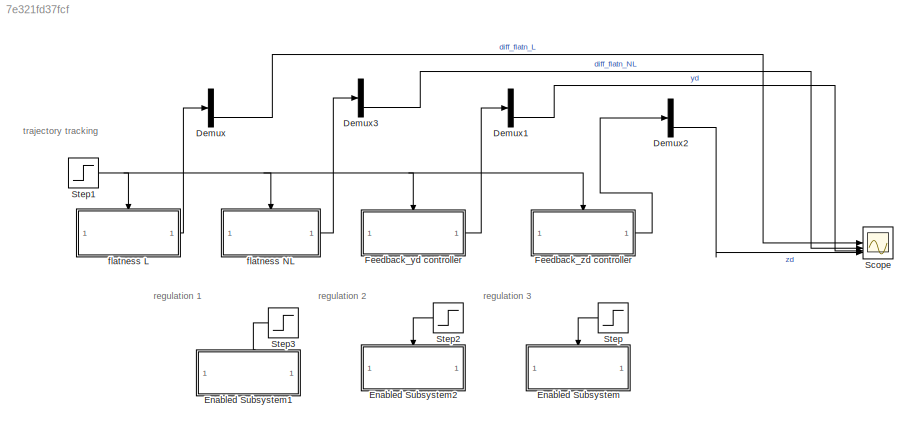
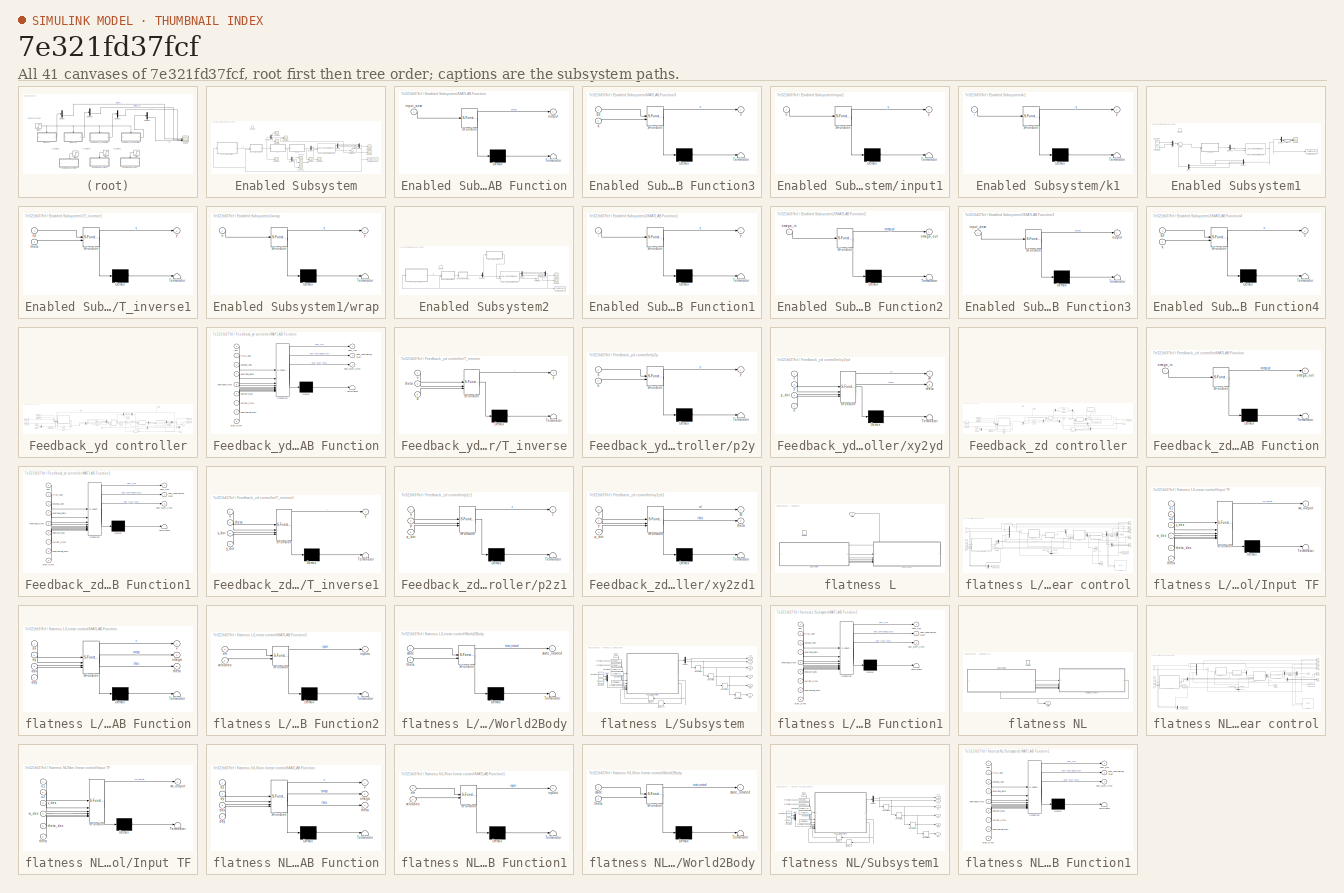
[diagram: thumbnail index - all 41 canvases of the model, root first then tree order]
MODEL slx_7e321fd37fcf
KIND model
CONFIG AbsTol = auto
CONFIG EnableMultiTasking = off
CONFIG FixedStep = auto
CONFIG MaxStep = auto
CONFIG MinStep = auto
CONFIG RelTol = 1e-3
CONFIG SampleTimeConstraint = Unconstrained
CONFIG SolverName = FixedStepAuto
CONFIG StartTime = 0.0
CONFIG StopTime = 15
WORKSPACE source: mxarray member
WORKSPACE kp: Simulink.Parameter (value not decoded)
BLOCK [Demux] Demux
  Outputs = 3
BLOCK [Demux] Demux1
  Outputs = 3
BLOCK [Demux] Demux2
  Outputs = 3
BLOCK [Demux] Demux3
  Outputs = 3
BLOCK [SubSystem] Enabled Subsystem
  TreatAsAtomicUnit = on
BLOCK [Demux] Enabled Subsystem/Demux
  Outputs = 3
BLOCK [Demux] Enabled Subsystem/Demux2
  Outputs = 3
BLOCK [Demux] Enabled Subsystem/Demux3
  Outputs = 3
BLOCK [Demux] Enabled Subsystem/Demux5
  Outputs = 2
BLOCK [EnablePort] Enabled Subsystem/Enable
BLOCK [SubSystem] Enabled Subsystem/MATLAB Function
  ErrorFcn = Stateflow.Translate.translate
  PermitHierarchicalResolution = ExplicitOnly
  SFBlockType = MATLAB Function
  TreatAsAtomicUnit = on
BLOCK [Demux] Enabled Subsystem/MATLAB Function/ Demux 
  Outputs = 1
BLOCK [S-Function] Enabled Subsystem/MATLAB Function/ SFunction 
  EnableBusSupport = on
  FunctionName = sf_sfun
  PortCounts = [1 2]
  SFcnIsStateOwnerBlock = off
  SFunctionDeploymentMode = off
  Tag = Stateflow S-Function 7
BLOCK [Terminator] Enabled Subsystem/MATLAB Function/ Terminator 
BLOCK [Inport] Enabled Subsystem/MATLAB Function/input_pose
BLOCK [Outport] Enabled Subsystem/MATLAB Function/output
BLOCK [SubSystem] Enabled Subsystem/MATLAB Function3
  ErrorFcn = Stateflow.Translate.translate
  PermitHierarchicalResolution = ExplicitOnly
  SFBlockType = MATLAB Function
  TreatAsAtomicUnit = on
BLOCK [Demux] Enabled Subsystem/MATLAB Function3/ Demux 
  Outputs = 1
BLOCK [S-Function] Enabled Subsystem/MATLAB Function3/ SFunction 
  EnableBusSupport = on
  FunctionName = sf_sfun
  PortCounts = [2 2]
  SFcnIsStateOwnerBlock = off
  SFunctionDeploymentMode = off
  Tag = Stateflow S-Function 9
BLOCK [Terminator] Enabled Subsystem/MATLAB Function3/ Terminator 
BLOCK [Outport] Enabled Subsystem/MATLAB Function3/o
BLOCK [Inport] Enabled Subsystem/MATLAB Function3/q
  Port = 2
BLOCK [Inport] Enabled Subsystem/MATLAB Function3/qd
BLOCK [Mux] Enabled Subsystem/Mux2
  DisplayOption = bar
  Inputs = 3
BLOCK [Scope] Enabled Subsystem/Scope10
  Floating = off
  NumInputPorts = 1
  ScopeSpecificationString = Simulink.scopes.TimeScopeBlockCfg('CurrentConfiguration', extmgr.ConfigurationSet(extmgr.Configuration('Core','General UI',true),extmgr.Configuration('Core','Source UI',true),extmgr.Configuration('Sources','WiredSimulink',true,'DataLoggingVariableName','ScopeData1'),extmgr.Configuration('Visuals','Time Domain',true,'SerializedDisplays',{struct('MinYLimReal','-1.16743','MaxYLimReal','0.58863','YLab...<+1438ch>
BLOCK [Scope] Enabled Subsystem/Scope11
  Floating = off
  NumInputPorts = 1
  ScopeSpecificationString = Simulink.scopes.TimeScopeBlockCfg('CurrentConfiguration', extmgr.ConfigurationSet(extmgr.Configuration('Core','General UI',true),extmgr.Configuration('Core','Source UI',true),extmgr.Configuration('Sources','WiredSimulink',true,'DataLoggingVariableName','ScopeData2'),extmgr.Configuration('Visuals','Time Domain',true,'SerializedDisplays',{struct('MinYLimReal','-16.30977','MaxYLimReal','146.78792','Y...<+1448ch>
BLOCK [Scope] Enabled Subsystem/Scope12
  Floating = off
  NumInputPorts = 1
  ScopeSpecificationString = Simulink.scopes.TimeScopeBlockCfg('CurrentConfiguration', extmgr.ConfigurationSet(extmgr.Configuration('Core','General UI',true),extmgr.Configuration('Core','Source UI',true),extmgr.Configuration('Sources','WiredSimulink',true,'DataLoggingVariableName','ScopeData3'),extmgr.Configuration('Visuals','Time Domain',true,'SerializedDisplays',{struct('MinYLimReal','-245.76562','MaxYLimReal','2211.89062',...<+1465ch>
BLOCK [Scope] Enabled Subsystem/Scope2
  Floating = off
  NumInputPorts = 1
  ScopeSpecificationString = Simulink.scopes.TimeScopeBlockCfg('CurrentConfiguration', extmgr.ConfigurationSet(extmgr.Configuration('Core','General UI',true),extmgr.Configuration('Core','Source UI',true),extmgr.Configuration('Sources','WiredSimulink',true,'DataLoggingVariableName','ScopeData4'),extmgr.Configuration('Visuals','Time Domain',true,'SerializedDisplays',{struct('MinYLimReal','-0.19774','MaxYLimReal','1.77968','YLab...<+1417ch>
BLOCK [Scope] Enabled Subsystem/Scope3
  Floating = off
  NumInputPorts = 1
  ScopeSpecificationString = Simulink.scopes.TimeScopeBlockCfg('CurrentConfiguration', extmgr.ConfigurationSet(extmgr.Configuration('Core','General UI',true),extmgr.Configuration('Core','Source UI',true),extmgr.Configuration('Sources','WiredSimulink',true,'DataLoggingVariableName','ScopeData5'),extmgr.Configuration('Visuals','Time Domain',true,'SerializedDisplays',{struct('MinYLimReal','-26.46174','MaxYLimReal','224.1183','YL...<+1496ch>
BLOCK [Scope] Enabled Subsystem/Scope4
  Floating = off
  NumInputPorts = 1
  ScopeSpecificationString = Simulink.scopes.TimeScopeBlockCfg('CurrentConfiguration', extmgr.ConfigurationSet(extmgr.Configuration('Core','General UI',true),extmgr.Configuration('Core','Source UI',true),extmgr.Configuration('Sources','WiredSimulink',true,'DataLoggingVariableName','ScopeData6'),extmgr.Configuration('Visuals','Time Domain',true,'SerializedDisplays',{struct('MinYLimReal','1.40715','MaxYLimReal','1.67308','YLabe...<+1460ch>
BLOCK [Scope] Enabled Subsystem/Scope5
  Floating = off
  NumInputPorts = 2
  ScopeSpecificationString = Simulink.scopes.TimeScopeBlockCfg('CurrentConfiguration', extmgr.ConfigurationSet(extmgr.Configuration('Core','General UI',true),extmgr.Configuration('Core','Source UI',true),extmgr.Configuration('Sources','WiredSimulink',true,'DataLoggingVariableName','ScopeData7'),extmgr.Configuration('Visuals','Time Domain',true,'SerializedDisplays',{struct('MinYLimReal','-3.5802','MaxYLimReal','23.77303','YLab...<+1447ch>
BLOCK [Scope] Enabled Subsystem/Scope6
  Floating = off
  NumInputPorts = 1
  ScopeSpecificationString = Simulink.scopes.TimeScopeBlockCfg('CurrentConfiguration', extmgr.ConfigurationSet(extmgr.Configuration('Core','General UI',true),extmgr.Configuration('Core','Source UI',true),extmgr.Configuration('Sources','WiredSimulink',true,'DataLoggingVariableName','ScopeData8'),extmgr.Configuration('Visuals','Time Domain',true,'SerializedDisplays',{struct('MinYLimReal','-14.71148','MaxYLimReal','142.44876','Y...<+1429ch>
BLOCK [Scope] Enabled Subsystem/Scope7
  Floating = off
  NumInputPorts = 1
  ScopeSpecificationString = Simulink.scopes.TimeScopeBlockCfg('CurrentConfiguration', extmgr.ConfigurationSet(extmgr.Configuration('Core','General UI',true),extmgr.Configuration('Core','Source UI',true),extmgr.Configuration('Sources','WiredSimulink',true,'DataLoggingVariableName','ScopeData9'),extmgr.Configuration('Visuals','Time Domain',true,'SerializedDisplays',{struct('MinYLimReal','-1.15104','MaxYLimReal','6.1719','YLabe...<+1434ch>
BLOCK [Scope] Enabled Subsystem/Scope8
  Floating = off
  NumInputPorts = 1
  ScopeSpecificationString = Simulink.scopes.TimeScopeBlockCfg('CurrentConfiguration', extmgr.ConfigurationSet(extmgr.Configuration('Core','General UI',true),extmgr.Configuration('Core','Source UI',true),extmgr.Configuration('Sources','WiredSimulink',true,'DataLoggingVariableName','ScopeData10'),extmgr.Configuration('Visuals','Time Domain',true,'SerializedDisplays',{struct('MinYLimReal','-1.24996','MaxYLimReal','11.24963','YL...<+1424ch>
BLOCK [Scope] Enabled Subsystem/Scope9
  Floating = off
  NumInputPorts = 1
  ScopeSpecificationString = Simulink.scopes.TimeScopeBlockCfg('CurrentConfiguration', extmgr.ConfigurationSet(extmgr.Configuration('Core','General UI',true),extmgr.Configuration('Core','Source UI',true),extmgr.Configuration('Sources','WiredSimulink',true,'DataLoggingVariableName','ScopeData11'),extmgr.Configuration('Visuals','Time Domain',true,'SerializedDisplays',{struct('MinYLimReal','-13.04195','MaxYLimReal','222.62721','...<+1430ch>
BLOCK [Terminator] Enabled Subsystem/Terminator
BLOCK [ToWorkspace] Enabled Subsystem/To Workspace1
  FixptAsFi = on
  MaxDataPoints = inf
  SampleTime = 0.004
  SaveFormat = Structure With Time
  VariableName = uni_state1
BLOCK [Reference] Enabled Subsystem/Unicycle Kinematic Model1  REF=robotmobilelib/Unicycle Kinematic Model
  SourceBlock = robotmobilelib/Unicycle Kinematic Model
  SourceType = Unicycle Kinematic Model
BLOCK [Reference] Enabled Subsystem/Unwrap  REF=dspsigops/Unwrap
  SourceBlock = dspsigops/Unwrap
  SourceType = Unwrap
  UserDataPersistent = on
BLOCK [SubSystem] Enabled Subsystem/input1
  ErrorFcn = Stateflow.Translate.translate
  PermitHierarchicalResolution = ExplicitOnly
  SFBlockType = MATLAB Function
  TreatAsAtomicUnit = on
BLOCK [Demux] Enabled Subsystem/input1/ Demux 
  Outputs = 1
BLOCK [S-Function] Enabled Subsystem/input1/ SFunction 
  EnableBusSupport = on
  FunctionName = sf_sfun
  PortCounts = [1 2]
  SFcnIsStateOwnerBlock = off
  SFunctionDeploymentMode = off
  Tag = Stateflow S-Function 10
BLOCK [Terminator] Enabled Subsystem/input1/ Terminator 
BLOCK [Inport] Enabled Subsystem/input1/u
BLOCK [Outport] Enabled Subsystem/input1/y
BLOCK [SubSystem] Enabled Subsystem/k1
  ErrorFcn = Stateflow.Translate.translate
  PermitHierarchicalResolution = ExplicitOnly
  SFBlockType = MATLAB Function
  TreatAsAtomicUnit = on
BLOCK [Demux] Enabled Subsystem/k1/ Demux 
  Outputs = 1
BLOCK [S-Function] Enabled Subsystem/k1/ SFunction 
  EnableBusSupport = on
  FunctionName = sf_sfun
  PortCounts = [1 2]
  SFcnIsStateOwnerBlock = off
  SFunctionDeploymentMode = off
  Tag = Stateflow S-Function 11
BLOCK [Terminator] Enabled Subsystem/k1/ Terminator 
BLOCK [Inport] Enabled Subsystem/k1/i
BLOCK [Outport] Enabled Subsystem/k1/y
BLOCK [SubSystem] Enabled Subsystem1
  Commented = on
  TreatAsAtomicUnit = on
BLOCK [Constant] Enabled Subsystem1/Constant
  Value = 320
BLOCK [Constant] Enabled Subsystem1/Constant1
  Value = 100
BLOCK [Demux] Enabled Subsystem1/Demux
  NameLocation = top
  Outputs = 3
BLOCK [Demux] Enabled Subsystem1/Demux2
  Outputs = 2
BLOCK [Demux] Enabled Subsystem1/Demux4
  Outputs = 3
BLOCK [EnablePort] Enabled Subsystem1/Enable
BLOCK [Mux] Enabled Subsystem1/Mux
  DisplayOption = bar
  Inputs = 2
BLOCK [Mux] Enabled Subsystem1/Mux1
  DisplayOption = bar
  Inputs = 2
  NameLocation = top
BLOCK [Scope] Enabled Subsystem1/Scope2
  Floating = off
  NumInputPorts = 3
  ScopeSpecificationString = Simulink.scopes.TimeScopeBlockCfg('CurrentConfiguration', extmgr.ConfigurationSet(extmgr.Configuration('Core','General UI',true),extmgr.Configuration('Core','Source UI',true),extmgr.Configuration('Sources','WiredSimulink',true,'DataLoggingVariableName','ScopeData1'),extmgr.Configuration('Visuals','Time Domain',true,'SerializedDisplays',{struct('MinYLimReal','-40.00000','MaxYLimReal','360.00000','Y...<+1475ch>
BLOCK [Sum] Enabled Subsystem1/Sum2
  Inputs = ||+-|
BLOCK [SubSystem] Enabled Subsystem1/T_inverse1
  ErrorFcn = Stateflow.Translate.translate
  PermitHierarchicalResolution = ExplicitOnly
  SFBlockType = MATLAB Function
  TreatAsAtomicUnit = on
BLOCK [Demux] Enabled Subsystem1/T_inverse1/ Demux 
  Outputs = 1
BLOCK [S-Function] Enabled Subsystem1/T_inverse1/ SFunction 
  EnableBusSupport = off
  FunctionName = sf_sfun
  PortCounts = [2 2]
  SFcnIsStateOwnerBlock = off
  SFunctionDeploymentMode = off
  Tag = Stateflow S-Function 17
BLOCK [Terminator] Enabled Subsystem1/T_inverse1/ Terminator 
BLOCK [Inport] Enabled Subsystem1/T_inverse1/ep
BLOCK [Inport] Enabled Subsystem1/T_inverse1/theta
  Port = 2
BLOCK [Outport] Enabled Subsystem1/T_inverse1/y
BLOCK [ToWorkspace] Enabled Subsystem1/To Workspace1
  FixptAsFi = on
  MaxDataPoints = inf
  SampleTime = 0.001
  SaveFormat = Structure With Time
  VariableName = uni_state1
BLOCK [Reference] Enabled Subsystem1/Unicycle Kinematic Model1  REF=robotmobilelib/Unicycle Kinematic Model
  SourceBlock = robotmobilelib/Unicycle Kinematic Model
  SourceType = Unicycle Kinematic Model
BLOCK [SubSystem] Enabled Subsystem1/wrap
  ErrorFcn = Stateflow.Translate.translate
  PermitHierarchicalResolution = ExplicitOnly
  SFBlockType = MATLAB Function
  TreatAsAtomicUnit = on
BLOCK [Demux] Enabled Subsystem1/wrap/ Demux 
  Outputs = 1
BLOCK [S-Function] Enabled Subsystem1/wrap/ SFunction 
  EnableBusSupport = off
  FunctionName = sf_sfun
  PortCounts = [1 2]
  SFcnIsStateOwnerBlock = off
  SFunctionDeploymentMode = off
  Tag = Stateflow S-Function 16
BLOCK [Terminator] Enabled Subsystem1/wrap/ Terminator 
BLOCK [Inport] Enabled Subsystem1/wrap/u
BLOCK [Outport] Enabled Subsystem1/wrap/y
BLOCK [SubSystem] Enabled Subsystem2
  Commented = on
  TreatAsAtomicUnit = on
BLOCK [Demux] Enabled Subsystem2/Demux
  Outputs = 3
BLOCK [Demux] Enabled Subsystem2/Demux5
  Outputs = 2
BLOCK [EnablePort] Enabled Subsystem2/Enable
BLOCK [SubSystem] Enabled Subsystem2/MATLAB Function1
  ErrorFcn = Stateflow.Translate.translate
  PermitHierarchicalResolution = ExplicitOnly
  SFBlockType = MATLAB Function
  TreatAsAtomicUnit = on
BLOCK [Demux] Enabled Subsystem2/MATLAB Function1/ Demux 
  Outputs = 1
BLOCK [S-Function] Enabled Subsystem2/MATLAB Function1/ SFunction 
  EnableBusSupport = off
  FunctionName = sf_sfun
  PortCounts = [1 2]
  SFcnIsStateOwnerBlock = off
  SFunctionDeploymentMode = off
  Tag = Stateflow S-Function 12
BLOCK [Terminator] Enabled Subsystem2/MATLAB Function1/ Terminator 
BLOCK [Inport] Enabled Subsystem2/MATLAB Function1/i
BLOCK [Outport] Enabled Subsystem2/MATLAB Function1/y
BLOCK [SubSystem] Enabled Subsystem2/MATLAB Function2
  ErrorFcn = Stateflow.Translate.translate
  PermitHierarchicalResolution = ExplicitOnly
  SFBlockType = MATLAB Function
  TreatAsAtomicUnit = on
BLOCK [Demux] Enabled Subsystem2/MATLAB Function2/ Demux 
  Outputs = 1
BLOCK [S-Function] Enabled Subsystem2/MATLAB Function2/ SFunction 
  EnableBusSupport = off
  FunctionName = sf_sfun
  PortCounts = [1 2]
  SFcnIsStateOwnerBlock = off
  SFunctionDeploymentMode = off
  Tag = Stateflow S-Function 13
BLOCK [Terminator] Enabled Subsystem2/MATLAB Function2/ Terminator 
BLOCK [Inport] Enabled Subsystem2/MATLAB Function2/omega_in
BLOCK [Outport] Enabled Subsystem2/MATLAB Function2/omega_out
BLOCK [SubSystem] Enabled Subsystem2/MATLAB Function3
  ErrorFcn = Stateflow.Translate.translate
  PermitHierarchicalResolution = ExplicitOnly
  SFBlockType = MATLAB Function
  TreatAsAtomicUnit = on
BLOCK [Demux] Enabled Subsystem2/MATLAB Function3/ Demux 
  Outputs = 1
BLOCK [S-Function] Enabled Subsystem2/MATLAB Function3/ SFunction 
  EnableBusSupport = off
  FunctionName = sf_sfun
  PortCounts = [1 2]
  SFcnIsStateOwnerBlock = off
  SFunctionDeploymentMode = off
  Tag = Stateflow S-Function 14
BLOCK [Terminator] Enabled Subsystem2/MATLAB Function3/ Terminator 
BLOCK [Inport] Enabled Subsystem2/MATLAB Function3/input_pose
BLOCK [Outport] Enabled Subsystem2/MATLAB Function3/output
BLOCK [SubSystem] Enabled Subsystem2/MATLAB Function4
  ErrorFcn = Stateflow.Translate.translate
  PermitHierarchicalResolution = ExplicitOnly
  SFBlockType = MATLAB Function
  TreatAsAtomicUnit = on
BLOCK [Demux] Enabled Subsystem2/MATLAB Function4/ Demux 
  Outputs = 1
BLOCK [S-Function] Enabled Subsystem2/MATLAB Function4/ SFunction 
  EnableBusSupport = off
  FunctionName = sf_sfun
  PortCounts = [2 2]
  SFcnIsStateOwnerBlock = off
  SFunctionDeploymentMode = off
  Tag = Stateflow S-Function 15
BLOCK [Terminator] Enabled Subsystem2/MATLAB Function4/ Terminator 
BLOCK [Outport] Enabled Subsystem2/MATLAB Function4/o
BLOCK [Inport] Enabled Subsystem2/MATLAB Function4/q
  Port = 2
BLOCK [Inport] Enabled Subsystem2/MATLAB Function4/qd
BLOCK [Mux] Enabled Subsystem2/Mux2
  DisplayOption = bar
  Inputs = 3
BLOCK [Scope] Enabled Subsystem2/Scope1
  Floating = off
  NumInputPorts = 1
  ScopeSpecificationString = Simulink.scopes.TimeScopeBlockCfg('CurrentConfiguration', extmgr.ConfigurationSet(extmgr.Configuration('Core','General UI',true),extmgr.Configuration('Core','Source UI',true),extmgr.Configuration('Sources','WiredSimulink',true,'DataLoggingVariableName','ScopeData12'),extmgr.Configuration('Visuals','Time Domain',true,'SerializedDisplays',{struct('MinYLimReal','-0.51276','MaxYLimReal','1.89269','YLa...<+1418ch>
BLOCK [Scope] Enabled Subsystem2/Scope4
  Floating = off
  NumInputPorts = 1
  ScopeSpecificationString = Simulink.scopes.TimeScopeBlockCfg('CurrentConfiguration', extmgr.ConfigurationSet(extmgr.Configuration('Core','General UI',true),extmgr.Configuration('Core','Source UI',true),extmgr.Configuration('Sources','WiredSimulink',true,'DataLoggingVariableName','ScopeData13'),extmgr.Configuration('Visuals','Time Domain',true,'SerializedDisplays',{struct('MinYLimReal','1.40715','MaxYLimReal','1.67308','YLab...<+1461ch>
BLOCK [Terminator] Enabled Subsystem2/Terminator
BLOCK [ToWorkspace] Enabled Subsystem2/To Workspace2
  FixptAsFi = on
  MaxDataPoints = inf
  SampleTime = 0.004
  SaveFormat = Structure With Time
  VariableName = uni_state1
BLOCK [Reference] Enabled Subsystem2/Unicycle Kinematic Model2  REF=robotmobilelib/Unicycle Kinematic Model
  SourceBlock = robotmobilelib/Unicycle Kinematic Model
  SourceType = Unicycle Kinematic Model
BLOCK [Reference] Enabled Subsystem2/Unwrap  REF=dspsigops/Unwrap
  SourceBlock = dspsigops/Unwrap
  SourceType = Unwrap
  UserDataPersistent = on
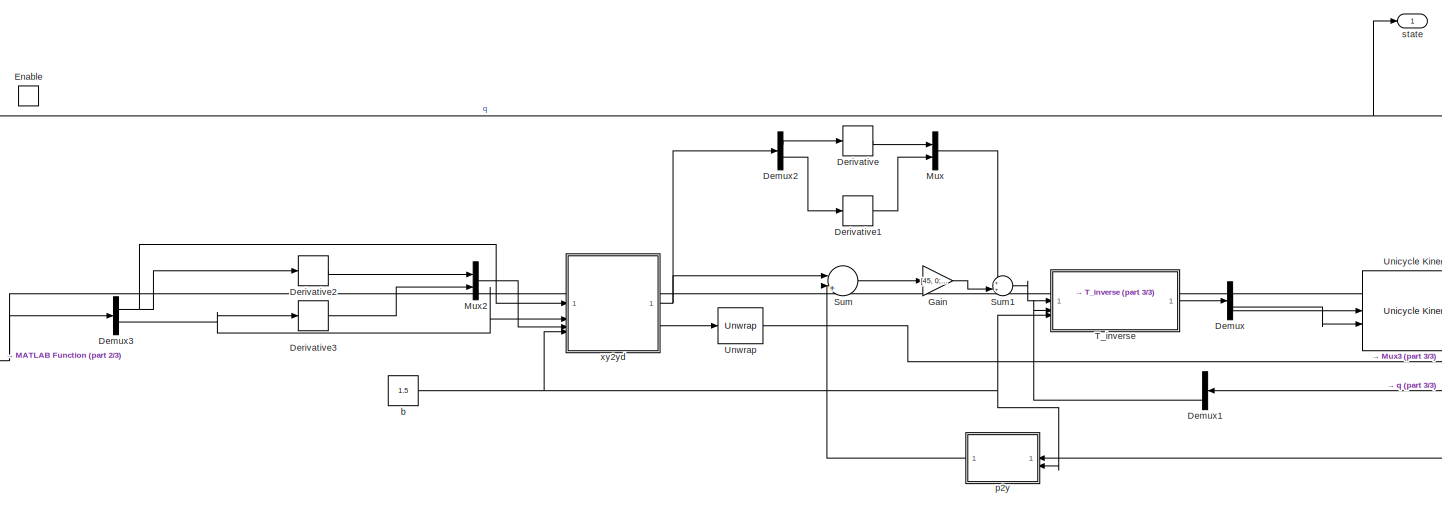
[diagram: Feedback_yd controller - part 1/3, center side, full height]
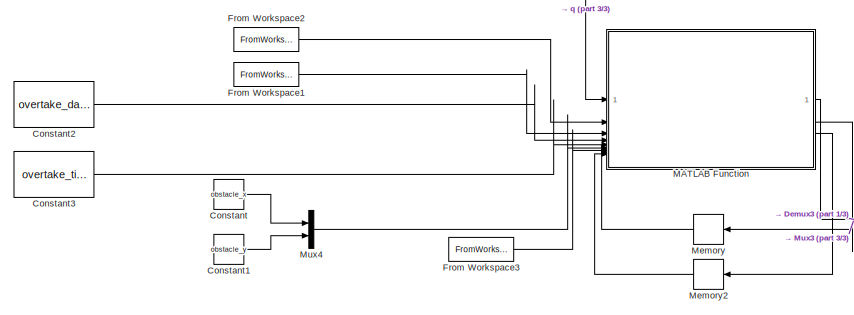
[diagram: Feedback_yd controller - part 2/3, middle left region]
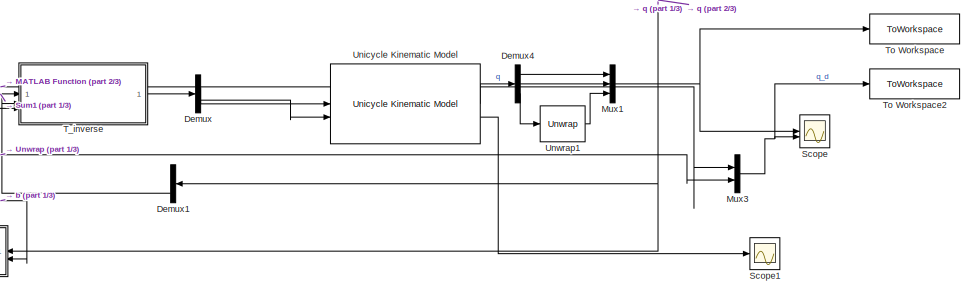
[diagram: Feedback_yd controller - part 3/3, bottom right region]
BLOCK [SubSystem] Feedback_yd controller
  TreatAsAtomicUnit = on
BLOCK [Constant] Feedback_yd controller/Constant
  Value = obstacle_x
BLOCK [Constant] Feedback_yd controller/Constant1
  Value = obstacle_y
BLOCK [Constant] Feedback_yd controller/Constant2
  Value = overtake_data
BLOCK [Constant] Feedback_yd controller/Constant3
  Value = overtake_time
BLOCK [Demux] Feedback_yd controller/Demux
  Outputs = 2
BLOCK [Demux] Feedback_yd controller/Demux1
  NameLocation = top
  Outputs = 3
BLOCK [Demux] Feedback_yd controller/Demux2
  Outputs = 2
BLOCK [Demux] Feedback_yd controller/Demux3
  Outputs = 2
BLOCK [Demux] Feedback_yd controller/Demux4
  Outputs = 3
BLOCK [Derivative] Feedback_yd controller/Derivative
BLOCK [Derivative] Feedback_yd controller/Derivative1
BLOCK [Derivative] Feedback_yd controller/Derivative2
BLOCK [Derivative] Feedback_yd controller/Derivative3
BLOCK [EnablePort] Feedback_yd controller/Enable
BLOCK [FromWorkspace] Feedback_yd controller/From Workspace1
  VariableName = second_lane
BLOCK [FromWorkspace] Feedback_yd controller/From Workspace2
  VariableName = ref_data
BLOCK [FromWorkspace] Feedback_yd controller/From Workspace3
  VariableName = current_time
BLOCK [Gain] Feedback_yd controller/Gain
  Gain = [45, 0; 0, 30]
  Multiplication = Matrix(K*u)
BLOCK [SubSystem] Feedback_yd controller/MATLAB Function
  ErrorFcn = Stateflow.Translate.translate
  LibrarySourceBlock = simulink/User-Defined\nFunctions/MATLAB Function
  PermitHierarchicalResolution = ExplicitOnly
  SFBlockType = MATLAB Function
  TreatAsAtomicUnit = on
BLOCK [Demux] Feedback_yd controller/MATLAB Function/ Demux 
  Outputs = 1
BLOCK [S-Function] Feedback_yd controller/MATLAB Function/ SFunction 
  EnableBusSupport = on
  FunctionName = sf_sfun
  PortCounts = [9 4]
  SFcnIsStateOwnerBlock = off
  SFunctionDeploymentMode = off
  Tag = Stateflow S-Function 18
BLOCK [Terminator] Feedback_yd controller/MATLAB Function/ Terminator 
BLOCK [Inport] Feedback_yd controller/MATLAB Function/current_time
  Port = 7
BLOCK [Inport] Feedback_yd controller/MATLAB Function/first_lane
  Port = 2
BLOCK [Outport] Feedback_yd controller/MATLAB Function/new_overtaking_start
  Port = 2
BLOCK [Outport] Feedback_yd controller/MATLAB Function/new_start_time
  Port = 3
BLOCK [Outport] Feedback_yd controller/MATLAB Function/new_traj
BLOCK [Inport] Feedback_yd controller/MATLAB Function/obstacle_pos
  Port = 6
BLOCK [Inport] Feedback_yd controller/MATLAB Function/overtake_data
  Port = 4
BLOCK [Inport] Feedback_yd controller/MATLAB Function/overtake_time
  Port = 5
BLOCK [Inport] Feedback_yd controller/MATLAB Function/overtaking_start
  Port = 8
BLOCK [Inport] Feedback_yd controller/MATLAB Function/pos
BLOCK [Inport] Feedback_yd controller/MATLAB Function/second_lane
  Port = 3
BLOCK [Inport] Feedback_yd controller/MATLAB Function/start_time
  Port = 9
BLOCK [Memory] Feedback_yd controller/Memory
  NameLocation = top
BLOCK [Memory] Feedback_yd controller/Memory2
  NameLocation = top
BLOCK [Mux] Feedback_yd controller/Mux
  DisplayOption = bar
  Inputs = 2
BLOCK [Mux] Feedback_yd controller/Mux1
  DisplayOption = bar
  Inputs = 3
BLOCK [Mux] Feedback_yd controller/Mux2
  DisplayOption = bar
  Inputs = 2
BLOCK [Mux] Feedback_yd controller/Mux3
  DisplayOption = bar
  Inputs = 2
BLOCK [Mux] Feedback_yd controller/Mux4
  DisplayOption = bar
  Inputs = 2
BLOCK [Scope] Feedback_yd controller/Scope
  Floating = off
  NumInputPorts = 2
  ScopeSpecificationString = Simulink.scopes.TimeScopeBlockCfg('CurrentConfiguration', extmgr.ConfigurationSet(extmgr.Configuration('Core','General UI',true),extmgr.Configuration('Core','Source UI',true),extmgr.Configuration('Sources','WiredSimulink',true),extmgr.Configuration('Visuals','Time Domain',true,'SerializedDisplays',{struct('MinYLimReal','-69.726','MaxYLimReal','627.51644','YLabelReal','','MinYLimMag','0.00000','Max...<+1447ch>
BLOCK [Scope] Feedback_yd controller/Scope1
  Floating = off
  NumInputPorts = 1
  ScopeSpecificationString = Simulink.scopes.TimeScopeBlockCfg('CurrentConfiguration', extmgr.ConfigurationSet(extmgr.Configuration('Core','General UI',true),extmgr.Configuration('Core','Source UI',true),extmgr.Configuration('Sources','WiredSimulink',true,'DataLoggingVariableName','ScopeData1'),extmgr.Configuration('Visuals','Time Domain',true,'SerializedDisplays',{struct('MinYLimReal','-202.83627','MaxYLimReal','191.02703','...<+1520ch>
BLOCK [Sum] Feedback_yd controller/Sum
  Inputs = ||+-|
BLOCK [Sum] Feedback_yd controller/Sum1
  Inputs = ++|
BLOCK [SubSystem] Feedback_yd controller/T_inverse
  ErrorFcn = Stateflow.Translate.translate
  PermitHierarchicalResolution = ExplicitOnly
  SFBlockType = MATLAB Function
  TreatAsAtomicUnit = on
BLOCK [Demux] Feedback_yd controller/T_inverse/ Demux 
  Outputs = 1
BLOCK [S-Function] Feedback_yd controller/T_inverse/ SFunction 
  EnableBusSupport = on
  FunctionName = sf_sfun
  PortCounts = [3 2]
  SFcnIsStateOwnerBlock = off
  SFunctionDeploymentMode = off
  Tag = Stateflow S-Function 19
BLOCK [Terminator] Feedback_yd controller/T_inverse/ Terminator 
BLOCK [Inport] Feedback_yd controller/T_inverse/b
  Port = 3
BLOCK [Inport] Feedback_yd controller/T_inverse/theta
  Port = 2
BLOCK [Inport] Feedback_yd controller/T_inverse/u
BLOCK [Outport] Feedback_yd controller/T_inverse/y
BLOCK [ToWorkspace] Feedback_yd controller/To Workspace
  FixptAsFi = on
  MaxDataPoints = inf
  SampleTime = 0.01
  SaveFormat = Structure With Time
  VariableName = uni_state_yd
BLOCK [ToWorkspace] Feedback_yd controller/To Workspace2
  FixptAsFi = on
  MaxDataPoints = inf
  SampleTime = 0.01
  SaveFormat = Structure With Time
  VariableName = reference_yd
BLOCK [Reference] Feedback_yd controller/Unicycle Kinematic Model  REF=robotmobilelib/Unicycle Kinematic Model
  SourceBlock = robotmobilelib/Unicycle Kinematic Model
  SourceType = Unicycle Kinematic Model
BLOCK [Reference] Feedback_yd controller/Unwrap  REF=dspsigops/Unwrap
  SourceBlock = dspsigops/Unwrap
  SourceType = Unwrap
  UserDataPersistent = on
BLOCK [Reference] Feedback_yd controller/Unwrap1  REF=dspsigops/Unwrap
  SourceBlock = dspsigops/Unwrap
  SourceType = Unwrap
  UserDataPersistent = on
BLOCK [Constant] Feedback_yd controller/b
  Value = 1.5
BLOCK [SubSystem] Feedback_yd controller/p2y
  ErrorFcn = Stateflow.Translate.translate
  NameLocation = top
  PermitHierarchicalResolution = ExplicitOnly
  SFBlockType = MATLAB Function
  TreatAsAtomicUnit = on
BLOCK [Demux] Feedback_yd controller/p2y/ Demux 
  Outputs = 1
BLOCK [S-Function] Feedback_yd controller/p2y/ SFunction 
  EnableBusSupport = on
  FunctionName = sf_sfun
  PortCounts = [2 2]
  SFcnIsStateOwnerBlock = off
  SFunctionDeploymentMode = off
  Tag = Stateflow S-Function 22
BLOCK [Terminator] Feedback_yd controller/p2y/ Terminator 
BLOCK [Inport] Feedback_yd controller/p2y/b
  Port = 2
BLOCK [Inport] Feedback_yd controller/p2y/q
BLOCK [Outport] Feedback_yd controller/p2y/y
BLOCK [Outport] Feedback_yd controller/state
BLOCK [SubSystem] Feedback_yd controller/xy2yd
  ErrorFcn = Stateflow.Translate.translate
  PermitHierarchicalResolution = ExplicitOnly
  SFBlockType = MATLAB Function
  TreatAsAtomicUnit = on
BLOCK [Demux] Feedback_yd controller/xy2yd/ Demux 
  Outputs = 1
BLOCK [S-Function] Feedback_yd controller/xy2yd/ SFunction 
  EnableBusSupport = on
  FunctionName = sf_sfun
  PortCounts = [4 3]
  SFcnIsStateOwnerBlock = off
  SFunctionDeploymentMode = off
  Tag = Stateflow S-Function 23
BLOCK [Terminator] Feedback_yd controller/xy2yd/ Terminator 
BLOCK [Inport] Feedback_yd controller/xy2yd/b
  Port = 4
BLOCK [Inport] Feedback_yd controller/xy2yd/p_dot
  Port = 3
BLOCK [Outport] Feedback_yd controller/xy2yd/theta
  Port = 2
BLOCK [Inport] Feedback_yd controller/xy2yd/x
BLOCK [Inport] Feedback_yd controller/xy2yd/y
  Port = 2
BLOCK [Outport] Feedback_yd controller/xy2yd/yd
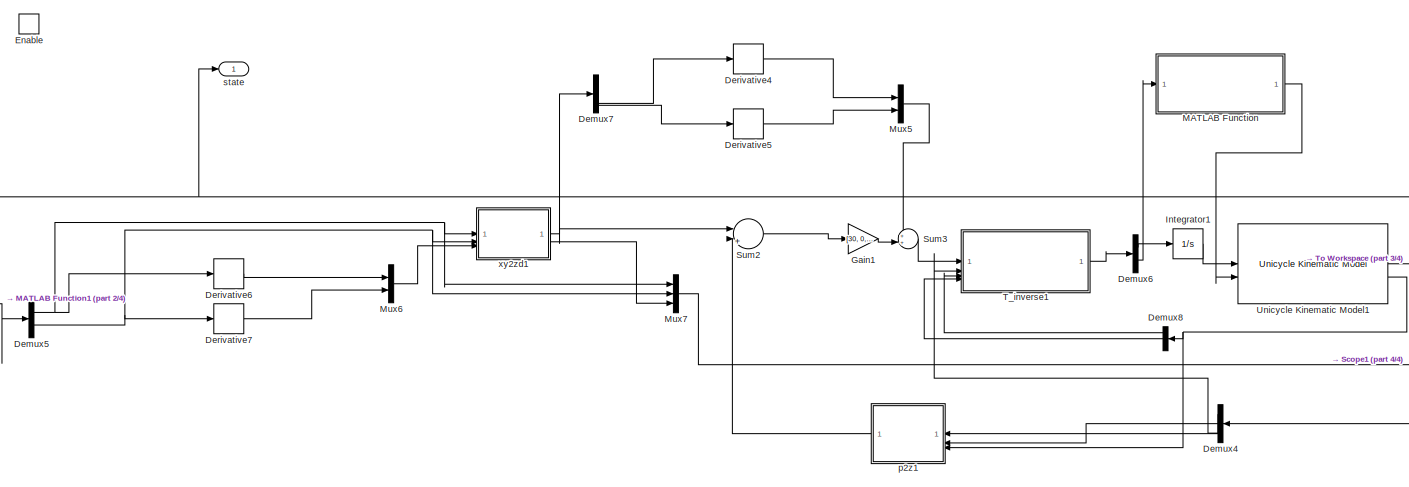
[diagram: Feedback_zd controller - part 1/4, center side, full height]
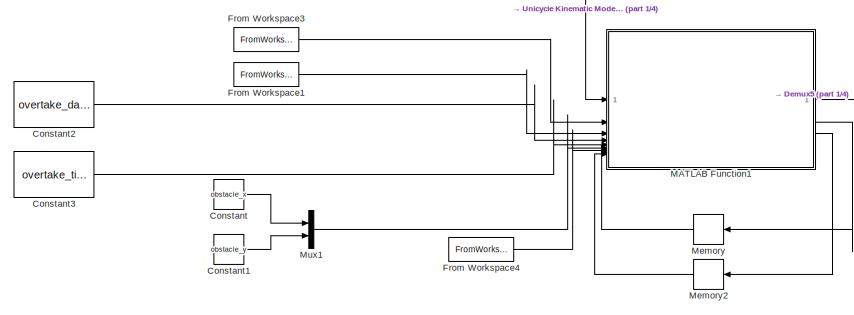
[diagram: Feedback_zd controller - part 2/4, bottom left region]
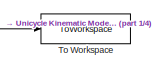
[diagram: Feedback_zd controller - part 3/4, middle right region]
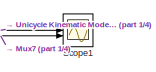
[diagram: Feedback_zd controller - part 4/4, middle right region]
BLOCK [SubSystem] Feedback_zd controller
  TreatAsAtomicUnit = on
BLOCK [Constant] Feedback_zd controller/Constant
  Value = obstacle_x
BLOCK [Constant] Feedback_zd controller/Constant1
  Value = obstacle_y
BLOCK [Constant] Feedback_zd controller/Constant2
  Value = overtake_data
BLOCK [Constant] Feedback_zd controller/Constant3
  Value = overtake_time
BLOCK [Demux] Feedback_zd controller/Demux4
  NameLocation = top
  Outputs = 3
BLOCK [Demux] Feedback_zd controller/Demux5
  Outputs = 2
BLOCK [Demux] Feedback_zd controller/Demux6
  Outputs = 2
BLOCK [Demux] Feedback_zd controller/Demux7
BLOCK [Demux] Feedback_zd controller/Demux8
  NameLocation = top
  Outputs = 3
BLOCK [Derivative] Feedback_zd controller/Derivative4
BLOCK [Derivative] Feedback_zd controller/Derivative5
BLOCK [Derivative] Feedback_zd controller/Derivative6
BLOCK [Derivative] Feedback_zd controller/Derivative7
BLOCK [EnablePort] Feedback_zd controller/Enable
BLOCK [FromWorkspace] Feedback_zd controller/From Workspace1
  VariableName = second_lane
BLOCK [FromWorkspace] Feedback_zd controller/From Workspace3
  VariableName = ref_data
BLOCK [FromWorkspace] Feedback_zd controller/From Workspace4
  VariableName = current_time
BLOCK [Gain] Feedback_zd controller/Gain1
  Gain = [30, 0, 50, 0; 0, 30, 0, 50]
  Multiplication = Matrix(K*u)
BLOCK [Integrator] Feedback_zd controller/Integrator1
BLOCK [SubSystem] Feedback_zd controller/MATLAB Function
  ErrorFcn = Stateflow.Translate.translate
  PermitHierarchicalResolution = ExplicitOnly
  SFBlockType = MATLAB Function
  TreatAsAtomicUnit = on
BLOCK [Demux] Feedback_zd controller/MATLAB Function/ Demux 
  Outputs = 1
BLOCK [S-Function] Feedback_zd controller/MATLAB Function/ SFunction 
  EnableBusSupport = on
  FunctionName = sf_sfun
  PortCounts = [1 2]
  SFcnIsStateOwnerBlock = off
  SFunctionDeploymentMode = off
  Tag = Stateflow S-Function 24
BLOCK [Terminator] Feedback_zd controller/MATLAB Function/ Terminator 
BLOCK [Inport] Feedback_zd controller/MATLAB Function/omega_in
BLOCK [Outport] Feedback_zd controller/MATLAB Function/omega_out
BLOCK [SubSystem] Feedback_zd controller/MATLAB Function1
  ErrorFcn = Stateflow.Translate.translate
  LibrarySourceBlock = simulink/User-Defined\nFunctions/MATLAB Function
  PermitHierarchicalResolution = ExplicitOnly
  SFBlockType = MATLAB Function
  TreatAsAtomicUnit = on
BLOCK [Demux] Feedback_zd controller/MATLAB Function1/ Demux 
  Outputs = 1
BLOCK [S-Function] Feedback_zd controller/MATLAB Function1/ SFunction 
  EnableBusSupport = on
  FunctionName = sf_sfun
  PortCounts = [9 4]
  SFcnIsStateOwnerBlock = off
  SFunctionDeploymentMode = off
  Tag = Stateflow S-Function 25
BLOCK [Terminator] Feedback_zd controller/MATLAB Function1/ Terminator 
BLOCK [Inport] Feedback_zd controller/MATLAB Function1/current_time
  Port = 7
BLOCK [Inport] Feedback_zd controller/MATLAB Function1/first_lane
  Port = 2
BLOCK [Outport] Feedback_zd controller/MATLAB Function1/new_overtaking_start
  Port = 2
BLOCK [Outport] Feedback_zd controller/MATLAB Function1/new_start_time
  Port = 3
BLOCK [Outport] Feedback_zd controller/MATLAB Function1/new_traj
BLOCK [Inport] Feedback_zd controller/MATLAB Function1/obstacle_pos
  Port = 6
BLOCK [Inport] Feedback_zd controller/MATLAB Function1/overtake_data
  Port = 4
BLOCK [Inport] Feedback_zd controller/MATLAB Function1/overtake_time
  Port = 5
BLOCK [Inport] Feedback_zd controller/MATLAB Function1/overtaking_start
  Port = 8
BLOCK [Inport] Feedback_zd controller/MATLAB Function1/pos
BLOCK [Inport] Feedback_zd controller/MATLAB Function1/second_lane
  Port = 3
BLOCK [Inport] Feedback_zd controller/MATLAB Function1/start_time
  Port = 9
BLOCK [Memory] Feedback_zd controller/Memory
  NameLocation = top
BLOCK [Memory] Feedback_zd controller/Memory2
  NameLocation = top
BLOCK [Mux] Feedback_zd controller/Mux1
  DisplayOption = bar
  Inputs = 2
BLOCK [Mux] Feedback_zd controller/Mux5
  DisplayOption = bar
  Inputs = 2
BLOCK [Mux] Feedback_zd controller/Mux6
  DisplayOption = bar
  Inputs = 2
BLOCK [Mux] Feedback_zd controller/Mux7
  DisplayOption = bar
  Inputs = 3
BLOCK [Scope] Feedback_zd controller/Scope1
  Floating = off
  NumInputPorts = 2
  ScopeSpecificationString = Simulink.scopes.TimeScopeBlockCfg('CurrentConfiguration', extmgr.ConfigurationSet(extmgr.Configuration('Core','General UI',true),extmgr.Configuration('Core','Source UI',true),extmgr.Configuration('Sources','WiredSimulink',true,'DataLoggingVariableName','ScopeData1'),extmgr.Configuration('Visuals','Time Domain',true,'SerializedDisplays',{struct('MinYLimReal','-69.7203','MaxYLimReal','627.4652','YLa...<+1600ch>
BLOCK [Sum] Feedback_zd controller/Sum2
  Inputs = ||+-|
BLOCK [Sum] Feedback_zd controller/Sum3
  Inputs = ++|
BLOCK [SubSystem] Feedback_zd controller/T_inverse1
  ErrorFcn = Stateflow.Translate.translate
  PermitHierarchicalResolution = ExplicitOnly
  SFBlockType = MATLAB Function
  TreatAsAtomicUnit = on
BLOCK [Demux] Feedback_zd controller/T_inverse1/ Demux 
  Outputs = 1
BLOCK [S-Function] Feedback_zd controller/T_inverse1/ SFunction 
  EnableBusSupport = on
  FunctionName = sf_sfun
  PortCounts = [4 2]
  SFcnIsStateOwnerBlock = off
  SFunctionDeploymentMode = off
  Tag = Stateflow S-Function 26
BLOCK [Terminator] Feedback_zd controller/T_inverse1/ Terminator 
BLOCK [Inport] Feedback_zd controller/T_inverse1/theta
  Port = 2
BLOCK [Inport] Feedback_zd controller/T_inverse1/u
BLOCK [Inport] Feedback_zd controller/T_inverse1/x_dot
  Port = 3
BLOCK [Outport] Feedback_zd controller/T_inverse1/y
BLOCK [Inport] Feedback_zd controller/T_inverse1/y_dot
  Port = 4
BLOCK [ToWorkspace] Feedback_zd controller/To Workspace
  FixptAsFi = on
  MaxDataPoints = inf
  SampleTime = 0.01
  SaveFormat = Structure With Time
  VariableName = uni_state_zd
BLOCK [Reference] Feedback_zd controller/Unicycle Kinematic Model1  REF=robotmobilelib/Unicycle Kinematic Model
  SourceBlock = robotmobilelib/Unicycle Kinematic Model
  SourceType = Unicycle Kinematic Model
BLOCK [SubSystem] Feedback_zd controller/p2z1
  ErrorFcn = Stateflow.Translate.translate
  NameLocation = top
  PermitHierarchicalResolution = ExplicitOnly
  SFBlockType = MATLAB Function
  TreatAsAtomicUnit = on
BLOCK [Demux] Feedback_zd controller/p2z1/ Demux 
  Outputs = 1
BLOCK [S-Function] Feedback_zd controller/p2z1/ SFunction 
  EnableBusSupport = on
  FunctionName = sf_sfun
  PortCounts = [3 2]
  SFcnIsStateOwnerBlock = off
  SFunctionDeploymentMode = off
  Tag = Stateflow S-Function 27
BLOCK [Terminator] Feedback_zd controller/p2z1/ Terminator 
BLOCK [Inport] Feedback_zd controller/p2z1/q_dot
  Port = 3
BLOCK [Inport] Feedback_zd controller/p2z1/xi
BLOCK [Inport] Feedback_zd controller/p2z1/yi
  Port = 2
BLOCK [Outport] Feedback_zd controller/p2z1/z
BLOCK [Outport] Feedback_zd controller/state
BLOCK [SubSystem] Feedback_zd controller/xy2zd1
  ErrorFcn = Stateflow.Translate.translate
  PermitHierarchicalResolution = ExplicitOnly
  SFBlockType = MATLAB Function
  TreatAsAtomicUnit = on
BLOCK [Demux] Feedback_zd controller/xy2zd1/ Demux 
  Outputs = 1
BLOCK [S-Function] Feedback_zd controller/xy2zd1/ SFunction 
  EnableBusSupport = on
  FunctionName = sf_sfun
  PortCounts = [3 3]
  SFcnIsStateOwnerBlock = off
  SFunctionDeploymentMode = off
  Tag = Stateflow S-Function 28
BLOCK [Terminator] Feedback_zd controller/xy2zd1/ Terminator 
BLOCK [Inport] Feedback_zd controller/xy2zd1/p_dot
  Port = 3
BLOCK [Outport] Feedback_zd controller/xy2zd1/theta
  Port = 2
BLOCK [Inport] Feedback_zd controller/xy2zd1/x
BLOCK [Inport] Feedback_zd controller/xy2zd1/y
  Port = 2
BLOCK [Outport] Feedback_zd controller/xy2zd1/zd
BLOCK [Scope] Scope
  Floating = off
  NumInputPorts = 4
  ScopeSpecificationString = Simulink.scopes.TimeScopeBlockCfg('CurrentConfiguration', extmgr.ConfigurationSet(extmgr.Configuration('Core','General UI',true),extmgr.Configuration('Core','Source UI',true),extmgr.Configuration('Sources','WiredSimulink',true,'DataLoggingVariableName','ScopeData1'),extmgr.Configuration('Visuals','Time Domain',true,'SerializedDisplays',{struct('MinYLimReal','-2.60098','MaxYLimReal','6.0733','YLabe...<+1462ch>
BLOCK [Step] Step
  SampleTime = 0
  Time = 10
BLOCK [Step] Step1
  After = 0
  Before = 1
  SampleTime = 0
  Time = 10
BLOCK [Step] Step2
  Commented = on
  SampleTime = 0
  Time = 10
BLOCK [Step] Step3
  Commented = on
  SampleTime = 0
  Time = 10
BLOCK [SubSystem] flatness L
  TreatAsAtomicUnit = on
BLOCK [EnablePort] flatness L/Enable
BLOCK [SubSystem] flatness L/Linear control
  PortSchema = {"entries":[{"content":{"sides":[{"content":{"connectorIds":["In1","In2","In3","In4","In5","In6"]},"type":"ConnectorPlacement.EquallySpacedRectSide","uuid":"9439d29c-34b2-4c3b-89f6-95a613f6df6b"},{"content":{"connectorIds":[],"side":"RIGHT"},"type":"ConnectorPlacement.EquallySpacedRectSide","uuid":"e3292a0e-d5d9-4e7c-90ea-e2dda34ca713"},{"content":{"connectorIds":["Out1"],"side":"TOP"},"type":"Con...<+270ch>
BLOCK [Demux] flatness L/Linear control/Demux
  Outputs = 3
BLOCK [Demux] flatness L/Linear control/Demux1
  NameLocation = right
  Outputs = 3
BLOCK [Demux] flatness L/Linear control/Demux2
  Outputs = 2
BLOCK [Demux] flatness L/Linear control/Demux3
  Outputs = 3
BLOCK [Demux] flatness L/Linear control/Demux5
  Outputs = 2
BLOCK [Outport] flatness L/Linear control/Input
BLOCK [SubSystem] flatness L/Linear control/Input TF
  ErrorFcn = Stateflow.Translate.translate
  PermitHierarchicalResolution = ExplicitOnly
  SFBlockType = MATLAB Function
  TreatAsAtomicUnit = on
BLOCK [Demux] flatness L/Linear control/Input TF/ Demux 
  Outputs = 1
BLOCK [S-Function] flatness L/Linear control/Input TF/ SFunction 
  EnableBusSupport = on
  FunctionName = sf_sfun
  PortCounts = [6 2]
  SFcnIsStateOwnerBlock = off
  SFunctionDeploymentMode = off
  Tag = Stateflow S-Function 3
BLOCK [Terminator] flatness L/Linear control/Input TF/ Terminator 
BLOCK [Inport] flatness L/Linear control/Input TF/theta
  Port = 6
BLOCK [Inport] flatness L/Linear control/Input TF/theta_des
  Port = 5
BLOCK [Inport] flatness L/Linear control/Input TF/u1
BLOCK [Inport] flatness L/Linear control/Input TF/u2
  Port = 2
BLOCK [Inport] flatness L/Linear control/Input TF/v_des
  Port = 3
BLOCK [Outport] flatness L/Linear control/Input TF/vw_output
BLOCK [Inport] flatness L/Linear control/Input TF/w_des
  Port = 4
BLOCK [SubSystem] flatness L/Linear control/MATLAB Function
  ErrorFcn = Stateflow.Translate.translate
  PermitHierarchicalResolution = ExplicitOnly
  SFBlockType = MATLAB Function
  TreatAsAtomicUnit = on
BLOCK [Demux] flatness L/Linear control/MATLAB Function/ Demux 
  Outputs = 1
BLOCK [S-Function] flatness L/Linear control/MATLAB Function/ SFunction 
  EnableBusSupport = on
  FunctionName = sf_sfun
  PortCounts = [4 4]
  SFcnIsStateOwnerBlock = off
  SFunctionDeploymentMode = off
  Tag = Stateflow S-Function 2
BLOCK [Terminator] flatness L/Linear control/MATLAB Function/ Terminator 
BLOCK [Inport] flatness L/Linear control/MATLAB Function/ddx
  Port = 3
BLOCK [Inport] flatness L/Linear control/MATLAB Function/ddy
  Port = 4
BLOCK [Inport] flatness L/Linear control/MATLAB Function/dx
BLOCK [Inport] flatness L/Linear control/MATLAB Function/dy
  Port = 2
BLOCK [Outport] flatness L/Linear control/MATLAB Function/omega
  Port = 2
BLOCK [Outport] flatness L/Linear control/MATLAB Function/theta
  Port = 3
BLOCK [Outport] flatness L/Linear control/MATLAB Function/v
BLOCK [SubSystem] flatness L/Linear control/MATLAB Function2
  ErrorFcn = Stateflow.Translate.translate
  PermitHierarchicalResolution = ExplicitOnly
  SFBlockType = MATLAB Function
  TreatAsAtomicUnit = on
BLOCK [Demux] flatness L/Linear control/MATLAB Function2/ Demux 
  Outputs = 1
BLOCK [S-Function] flatness L/Linear control/MATLAB Function2/ SFunction 
  EnableBusSupport = on
  FunctionName = sf_sfun
  PortCounts = [2 2]
  SFcnIsStateOwnerBlock = off
  SFunctionDeploymentMode = off
  Tag = Stateflow S-Function 4
BLOCK [Terminator] flatness L/Linear control/MATLAB Function2/ Terminator 
BLOCK [Inport] flatness L/Linear control/MATLAB Function2/err
BLOCK [Outport] flatness L/Linear control/MATLAB Function2/inputs
BLOCK [Inport] flatness L/Linear control/MATLAB Function2/velocities
  Port = 2
BLOCK [Mux] flatness L/Linear control/Mux
  DisplayOption = bar
  Inputs = 3
BLOCK [Mux] flatness L/Linear control/Mux1
  DisplayOption = bar
  Inputs = 3
BLOCK [Mux] flatness L/Linear control/Mux2
  DisplayOption = bar
  Inputs = 2
BLOCK [Mux] flatness L/Linear control/Mux3
  DisplayOption = bar
  Inputs = 3
BLOCK [Scope] flatness L/Linear control/Scope
  Floating = off
  NumInputPorts = 3
  ScopeSpecificationString = Simulink.scopes.TimeScopeBlockCfg('CurrentConfiguration', extmgr.ConfigurationSet(extmgr.Configuration('Core','General UI',true),extmgr.Configuration('Core','Source UI',true),extmgr.Configuration('Sources','WiredSimulink',true,'DataLoggingVariableName','ScopeData1'),extmgr.Configuration('Visuals','Time Domain',true,'SerializedDisplays',{struct('MinYLimReal','-545.64776','MaxYLimReal','208.87495','...<+2731ch>
BLOCK [Scope] flatness L/Linear control/Scope1
  Floating = off
  NumInputPorts = 1
  ScopeSpecificationString = Simulink.scopes.TimeScopeBlockCfg('CurrentConfiguration', extmgr.ConfigurationSet(extmgr.Configuration('Core','General UI',true),extmgr.Configuration('Core','Source UI',true),extmgr.Configuration('Sources','WiredSimulink',true,'DataLoggingVariableName','ScopeData1'),extmgr.Configuration('Visuals','Time Domain',true,'SerializedDisplays',{struct('MinYLimReal','-1786.0585','MaxYLimReal','14942.9868',...<+1434ch>
BLOCK [Scope] flatness L/Linear control/Scope2
  Floating = off
  NumInputPorts = 2
  ScopeSpecificationString = Simulink.scopes.TimeScopeBlockCfg('CurrentConfiguration', extmgr.ConfigurationSet(extmgr.Configuration('Core','General UI',true),extmgr.Configuration('Core','Source UI',true),extmgr.Configuration('Sources','WiredSimulink',true,'DataLoggingVariableName','ScopeData1'),extmgr.Configuration('Visuals','Time Domain',true,'SerializedDisplays',{struct('MinYLimReal','-1786.0585','MaxYLimReal','14942.9868',...<+1444ch>
BLOCK [Scope] flatness L/Linear control/Scope3
  Floating = off
  NumInputPorts = 2
  ScopeSpecificationString = Simulink.scopes.TimeScopeBlockCfg('CurrentConfiguration', extmgr.ConfigurationSet(extmgr.Configuration('Core','General UI',true),extmgr.Configuration('Core','Source UI',true),extmgr.Configuration('Sources','WiredSimulink',true,'DataLoggingVariableName','ScopeData2'),extmgr.Configuration('Visuals','Time Domain',true,'SerializedDisplays',{struct('MinYLimReal','-71.02499','MaxYLimReal','624.55833','Y...<+1636ch>
BLOCK [Scope] flatness L/Linear control/Scope5
  Floating = off
  NumInputPorts = 2
  ScopeSpecificationString = Simulink.scopes.TimeScopeBlockCfg('CurrentConfiguration', extmgr.ConfigurationSet(extmgr.Configuration('Core','General UI',true),extmgr.Configuration('Core','Source UI',true),extmgr.Configuration('Sources','WiredSimulink',true,'DataLoggingVariableName','ScopeData5'),extmgr.Configuration('Visuals','Time Domain',true,'SerializedDisplays',{struct('MinYLimReal','3.78424','MaxYLimReal','216.2482','YLab...<+1456ch>
BLOCK [Scope] flatness L/Linear control/Scope6
  Floating = off
  NumInputPorts = 2
  ScopeSpecificationString = Simulink.scopes.TimeScopeBlockCfg('CurrentConfiguration', extmgr.ConfigurationSet(extmgr.Configuration('Core','General UI',true),extmgr.Configuration('Core','Source UI',true),extmgr.Configuration('Sources','WiredSimulink',true,'DataLoggingVariableName','ScopeData6'),extmgr.Configuration('Visuals','Time Domain',true,'SerializedDisplays',{struct('MinYLimReal','-1.875','MaxYLimReal','616.875','YLabel...<+1450ch>
BLOCK [Scope] flatness L/Linear control/Scope7
  Floating = off
  NumInputPorts = 2
  ScopeSpecificationString = Simulink.scopes.TimeScopeBlockCfg('CurrentConfiguration', extmgr.ConfigurationSet(extmgr.Configuration('Core','General UI',true),extmgr.Configuration('Core','Source UI',true),extmgr.Configuration('Sources','WiredSimulink',true,'DataLoggingVariableName','ScopeData7'),extmgr.Configuration('Visuals','Time Domain',true,'SerializedDisplays',{struct('MinYLimReal','0.52179','MaxYLimReal','4.59301','YLabe...<+1449ch>
BLOCK [Sum] flatness L/Linear control/Sum
  Inputs = |+-
BLOCK [Terminator] flatness L/Linear control/Terminator2
  NameLocation = right
BLOCK [Terminator] flatness L/Linear control/Terminator3
  NameLocation = right
BLOCK [ToWorkspace] flatness L/Linear control/To Workspace
  FixptAsFi = on
  MaxDataPoints = inf
  SampleTime = 0.01
  SaveFormat = Structure With Time
  VariableName = uni_state_linear
BLOCK [ToWorkspace] flatness L/Linear control/To Workspace1
  FixptAsFi = on
  MaxDataPoints = inf
  SampleTime = 0.01
  SaveFormat = Structure With Time
  VariableName = reference_linear
BLOCK [Reference] flatness L/Linear control/Unicycle Kinematic Model  REF=robotmobilelib/Unicycle Kinematic Model
  SourceBlock = robotmobilelib/Unicycle Kinematic Model
  SourceType = Unicycle Kinematic Model
BLOCK [Reference] flatness L/Linear control/Unwrap  REF=dspsigops/Unwrap
  SourceBlock = dspsigops/Unwrap
  SourceType = Unwrap
  UserDataPersistent = on
BLOCK [Reference] flatness L/Linear control/Unwrap1  REF=dspsigops/Unwrap
  SourceBlock = dspsigops/Unwrap
  SourceType = Unwrap
  UserDataPersistent = on
BLOCK [SubSystem] flatness L/Linear control/World2Body
  ErrorFcn = Stateflow.Translate.translate
  PermitHierarchicalResolution = ExplicitOnly
  SFBlockType = MATLAB Function
  TreatAsAtomicUnit = on
BLOCK [Demux] flatness L/Linear control/World2Body/ Demux 
  Outputs = 1
BLOCK [S-Function] flatness L/Linear control/World2Body/ SFunction 
  EnableBusSupport = on
  FunctionName = sf_sfun
  PortCounts = [2 2]
  SFcnIsStateOwnerBlock = off
  SFunctionDeploymentMode = off
  Tag = Stateflow S-Function 1
BLOCK [Terminator] flatness L/Linear control/World2Body/ Terminator 
BLOCK [Inport] flatness L/Linear control/World2Body/state
BLOCK [Outport] flatness L/Linear control/World2Body/state_rotated
BLOCK [Inport] flatness L/Linear control/World2Body/theta
  Port = 2
BLOCK [Record] flatness L/Linear control/XY Graph
  CompatibilityTag = XY
  FileSettingsInternal = {"entries":[{"content":{"excelSettings":{"content":{},"type":"Streamout.ExcelSettings"}},"type":"Streamout.FileSettingStorage","uuid":""}],"packageUris":["http:\/\/schema.mathworks.com\/mf0\/streamout_blocks\/R2020a"],"version":"1.0"}
  Layout = [1 1]
  SignalsInternal = {"entries":[{"content":{"signals":[{"content":{"blockPath":[],"dimensions":[1],"domain":"","lineColor":"#ff6929","port":1,"sid":[""],"signalID":979,"signalName":"Demux:1"},"type":"RecordBlkView.Signal","uuid":""},{"content":{"blockPath":[],"dimensions":[1],"domain":"","lineColor":"#b746ff","port":2,"sid":[""],"signalID":983,"signalName":"Demux:2"},"type":"RecordBlkView.Signal","uuid":""}]},"type":...<+136ch>
  VisualizationBindings = {"xyplotplugin":{"info":[{"series":[],"subplotID":1}]}}
BLOCK [Inport] flatness L/Linear control/ddx
  NameLocation = left
  Port = 5
BLOCK [Inport] flatness L/Linear control/ddy
  NameLocation = left
  Port = 6
BLOCK [Inport] flatness L/Linear control/dx
  NameLocation = left
  Port = 3
BLOCK [Inport] flatness L/Linear control/dy
  NameLocation = left
  Port = 4
BLOCK [Inport] flatness L/Linear control/x_d
  NameLocation = left
BLOCK [Inport] flatness L/Linear control/y_d
  NameLocation = left
  Port = 2
BLOCK [SubSystem] flatness L/Subsystem
  PortSchema = {"entries":[{"content":{"sides":[{"content":{"connectorIds":[]},"type":"ConnectorPlacement.EquallySpacedRectSide","uuid":"bab0430f-2040-4f48-ad8d-487ab7428587"},{"content":{"connectorIds":["Out1","Out2","Out3","Out4","Out5","Out6"],"side":"RIGHT"},"type":"ConnectorPlacement.EquallySpacedRectSide","uuid":"fe81b18b-57b7-4f8a-a498-2bb577fc7a66"},{"content":{"connectorIds":["In1"],"side":"TOP"},"type"...<+275ch>
BLOCK [Constant] flatness L/Subsystem/Constant
  Value = obstacle_x
BLOCK [Constant] flatness L/Subsystem/Constant1
  Value = obstacle_y
BLOCK [Constant] flatness L/Subsystem/Constant2
  Value = overtake_data
BLOCK [Constant] flatness L/Subsystem/Constant3
  Value = overtake_time
BLOCK [Demux] flatness L/Subsystem/Demux
  Outputs = 2
BLOCK [Derivative] flatness L/Subsystem/Derivative
BLOCK [Derivative] flatness L/Subsystem/Derivative1
BLOCK [Derivative] flatness L/Subsystem/Derivative2
BLOCK [Derivative] flatness L/Subsystem/Derivative3
BLOCK [FromWorkspace] flatness L/Subsystem/From Workspace2
  VariableName = second_lane
BLOCK [FromWorkspace] flatness L/Subsystem/From Workspace3
  VariableName = ref_data
BLOCK [FromWorkspace] flatness L/Subsystem/From Workspace4
  VariableName = current_time
BLOCK [Inport] flatness L/Subsystem/Input
BLOCK [SubSystem] flatness L/Subsystem/MATLAB Function1
  ErrorFcn = Stateflow.Translate.translate
  LibrarySourceBlock = simulink/User-Defined\nFunctions/MATLAB Function
  PermitHierarchicalResolution = ExplicitOnly
  SFBlockType = MATLAB Function
  TreatAsAtomicUnit = on
BLOCK [Demux] flatness L/Subsystem/MATLAB Function1/ Demux 
  Outputs = 1
BLOCK [S-Function] flatness L/Subsystem/MATLAB Function1/ SFunction 
  EnableBusSupport = on
  FunctionName = sf_sfun
  PortCounts = [9 4]
  SFcnIsStateOwnerBlock = off
  SFunctionDeploymentMode = off
  Tag = Stateflow S-Function 20
BLOCK [Terminator] flatness L/Subsystem/MATLAB Function1/ Terminator 
BLOCK [Inport] flatness L/Subsystem/MATLAB Function1/current_time
  Port = 7
BLOCK [Inport] flatness L/Subsystem/MATLAB Function1/first_lane
  Port = 2
BLOCK [Outport] flatness L/Subsystem/MATLAB Function1/new_overtaking_start
  Port = 2
BLOCK [Outport] flatness L/Subsystem/MATLAB Function1/new_start_time
  Port = 3
BLOCK [Outport] flatness L/Subsystem/MATLAB Function1/new_traj
BLOCK [Inport] flatness L/Subsystem/MATLAB Function1/obstacle_pos
  Port = 6
BLOCK [Inport] flatness L/Subsystem/MATLAB Function1/overtake_data
  Port = 4
BLOCK [Inport] flatness L/Subsystem/MATLAB Function1/overtake_time
  Port = 5
BLOCK [Inport] flatness L/Subsystem/MATLAB Function1/overtaking_start
  Port = 8
BLOCK [Inport] flatness L/Subsystem/MATLAB Function1/pos
BLOCK [Inport] flatness L/Subsystem/MATLAB Function1/second_lane
  Port = 3
BLOCK [Inport] flatness L/Subsystem/MATLAB Function1/start_time
  Port = 9
BLOCK [Memory] flatness L/Subsystem/Memory
  NameLocation = top
BLOCK [Memory] flatness L/Subsystem/Memory2
  NameLocation = top
BLOCK [Mux] flatness L/Subsystem/Mux1
  DisplayOption = bar
  Inputs = 2
BLOCK [Outport] flatness L/Subsystem/ddx
  NameLocation = right
  Port = 5
BLOCK [Outport] flatness L/Subsystem/ddy
  NameLocation = right
  Port = 6
BLOCK [Outport] flatness L/Subsystem/dx
  NameLocation = right
  Port = 3
BLOCK [Outport] flatness L/Subsystem/dy
  NameLocation = right
  Port = 4
BLOCK [Outport] flatness L/Subsystem/x_d
  NameLocation = right
BLOCK [Outport] flatness L/Subsystem/y_d
  NameLocation = right
  Port = 2
BLOCK [Outport] flatness L/state
BLOCK [SubSystem] flatness NL
BLOCK [EnablePort] flatness NL/Enable
BLOCK [SubSystem] flatness NL/Non linear control
BLOCK [Demux] flatness NL/Non linear control/Demux
  Outputs = 3
BLOCK [Demux] flatness NL/Non linear control/Demux1
  NameLocation = right
  Outputs = 3
BLOCK [Demux] flatness NL/Non linear control/Demux2
  Outputs = 2
BLOCK [Demux] flatness NL/Non linear control/Demux3
  Outputs = 3
BLOCK [Demux] flatness NL/Non linear control/Demux5
  Outputs = 2
BLOCK [Outport] flatness NL/Non linear control/Input
BLOCK [SubSystem] flatness NL/Non linear control/Input TF
  ErrorFcn = Stateflow.Translate.translate
  PermitHierarchicalResolution = ExplicitOnly
  SFBlockType = MATLAB Function
  TreatAsAtomicUnit = on
BLOCK [Demux] flatness NL/Non linear control/Input TF/ Demux 
  Outputs = 1
BLOCK [S-Function] flatness NL/Non linear control/Input TF/ SFunction 
  EnableBusSupport = on
  FunctionName = sf_sfun
  PortCounts = [6 2]
  SFcnIsStateOwnerBlock = off
  SFunctionDeploymentMode = off
  Tag = Stateflow S-Function 5
BLOCK [Terminator] flatness NL/Non linear control/Input TF/ Terminator 
BLOCK [Inport] flatness NL/Non linear control/Input TF/theta
  Port = 6
BLOCK [Inport] flatness NL/Non linear control/Input TF/theta_des
  Port = 5
BLOCK [Inport] flatness NL/Non linear control/Input TF/u1
BLOCK [Inport] flatness NL/Non linear control/Input TF/u2
  Port = 2
BLOCK [Inport] flatness NL/Non linear control/Input TF/v_des
  Port = 3
BLOCK [Outport] flatness NL/Non linear control/Input TF/vw_output
BLOCK [Inport] flatness NL/Non linear control/Input TF/w_des
  Port = 4
BLOCK [SubSystem] flatness NL/Non linear control/MATLAB Function
  ErrorFcn = Stateflow.Translate.translate
  PermitHierarchicalResolution = ExplicitOnly
  SFBlockType = MATLAB Function
  TreatAsAtomicUnit = on
BLOCK [Demux] flatness NL/Non linear control/MATLAB Function/ Demux 
  Outputs = 1
BLOCK [S-Function] flatness NL/Non linear control/MATLAB Function/ SFunction 
  EnableBusSupport = on
  FunctionName = sf_sfun
  PortCounts = [4 4]
  SFcnIsStateOwnerBlock = off
  SFunctionDeploymentMode = off
  Tag = Stateflow S-Function 6
BLOCK [Terminator] flatness NL/Non linear control/MATLAB Function/ Terminator 
BLOCK [Inport] flatness NL/Non linear control/MATLAB Function/ddx
  Port = 3
BLOCK [Inport] flatness NL/Non linear control/MATLAB Function/ddy
  Port = 4
BLOCK [Inport] flatness NL/Non linear control/MATLAB Function/dx
BLOCK [Inport] flatness NL/Non linear control/MATLAB Function/dy
  Port = 2
BLOCK [Outport] flatness NL/Non linear control/MATLAB Function/omega
  Port = 2
BLOCK [Outport] flatness NL/Non linear control/MATLAB Function/theta
  Port = 3
BLOCK [Outport] flatness NL/Non linear control/MATLAB Function/v
BLOCK [SubSystem] flatness NL/Non linear control/MATLAB Function1
  ErrorFcn = Stateflow.Translate.translate
  PermitHierarchicalResolution = ExplicitOnly
  SFBlockType = MATLAB Function
  TreatAsAtomicUnit = on
BLOCK [Demux] flatness NL/Non linear control/MATLAB Function1/ Demux 
  Outputs = 1
BLOCK [S-Function] flatness NL/Non linear control/MATLAB Function1/ SFunction 
  EnableBusSupport = on
  FunctionName = sf_sfun
  PortCounts = [2 2]
  SFcnIsStateOwnerBlock = off
  SFunctionDeploymentMode = off
  Tag = Stateflow S-Function 21
BLOCK [Terminator] flatness NL/Non linear control/MATLAB Function1/ Terminator 
BLOCK [Inport] flatness NL/Non linear control/MATLAB Function1/err
BLOCK [Outport] flatness NL/Non linear control/MATLAB Function1/inputs
BLOCK [Inport] flatness NL/Non linear control/MATLAB Function1/velocities
  Port = 2
BLOCK [Mux] flatness NL/Non linear control/Mux
  DisplayOption = bar
  Inputs = 3
BLOCK [Mux] flatness NL/Non linear control/Mux1
  DisplayOption = bar
  Inputs = 3
BLOCK [Mux] flatness NL/Non linear control/Mux2
  DisplayOption = bar
  Inputs = 2
BLOCK [Mux] flatness NL/Non linear control/Mux3
  DisplayOption = bar
  Inputs = 3
BLOCK [Scope] flatness NL/Non linear control/Scope
  Floating = off
  NumInputPorts = 3
  ScopeSpecificationString = Simulink.scopes.TimeScopeBlockCfg('CurrentConfiguration', extmgr.ConfigurationSet(extmgr.Configuration('Core','General UI',true),extmgr.Configuration('Core','Source UI',true),extmgr.Configuration('Sources','WiredSimulink',true,'DataLoggingVariableName','ScopeData2'),extmgr.Configuration('Visuals','Time Domain',true,'SerializedDisplays',{struct('MinYLimReal','-186463.54158','MaxYLimReal','820430.89...<+1479ch>
BLOCK [Scope] flatness NL/Non linear control/Scope1
  Floating = off
  NumInputPorts = 1
  ScopeSpecificationString = Simulink.scopes.TimeScopeBlockCfg('CurrentConfiguration', extmgr.ConfigurationSet(extmgr.Configuration('Core','General UI',true),extmgr.Configuration('Core','Source UI',true),extmgr.Configuration('Sources','WiredSimulink',true,'DataLoggingVariableName','ScopeData2'),extmgr.Configuration('Visuals','Time Domain',true,'SerializedDisplays',{struct('MinYLimReal','-624.94103','MaxYLimReal','323.21046','...<+1400ch>
BLOCK [Scope] flatness NL/Non linear control/Scope3
  Floating = off
  NumInputPorts = 2
  ScopeSpecificationString = Simulink.scopes.TimeScopeBlockCfg('CurrentConfiguration', extmgr.ConfigurationSet(extmgr.Configuration('Core','General UI',true),extmgr.Configuration('Core','Source UI',true),extmgr.Configuration('Sources','WiredSimulink',true,'DataLoggingVariableName','ScopeData4'),extmgr.Configuration('Visuals','Time Domain',true,'SerializedDisplays',{struct('MinYLimReal','-71.02499','MaxYLimReal','624.55833','Y...<+1636ch>
BLOCK [Scope] flatness NL/Non linear control/Scope5
  Floating = off
  NumInputPorts = 2
  ScopeSpecificationString = Simulink.scopes.TimeScopeBlockCfg('CurrentConfiguration', extmgr.ConfigurationSet(extmgr.Configuration('Core','General UI',true),extmgr.Configuration('Core','Source UI',true),extmgr.Configuration('Sources','WiredSimulink',true,'DataLoggingVariableName','ScopeData5'),extmgr.Configuration('Visuals','Time Domain',true,'SerializedDisplays',{struct('MinYLimReal','3.67803','MaxYLimReal','217.17085','YLa...<+1447ch>
BLOCK [Scope] flatness NL/Non linear control/Scope6
  Floating = off
  NumInputPorts = 2
  ScopeSpecificationString = Simulink.scopes.TimeScopeBlockCfg('CurrentConfiguration', extmgr.ConfigurationSet(extmgr.Configuration('Core','General UI',true),extmgr.Configuration('Core','Source UI',true),extmgr.Configuration('Sources','WiredSimulink',true,'DataLoggingVariableName','ScopeData6'),extmgr.Configuration('Visuals','Time Domain',true,'SerializedDisplays',{struct('MinYLimReal','546.11605','MaxYLimReal','561.62167','Y...<+1468ch>
BLOCK [Scope] flatness NL/Non linear control/Scope7
  Floating = off
  NumInputPorts = 2
  ScopeSpecificationString = Simulink.scopes.TimeScopeBlockCfg('CurrentConfiguration', extmgr.ConfigurationSet(extmgr.Configuration('Core','General UI',true),extmgr.Configuration('Core','Source UI',true),extmgr.Configuration('Sources','WiredSimulink',true,'DataLoggingVariableName','ScopeData7'),extmgr.Configuration('Visuals','Time Domain',true,'SerializedDisplays',{struct('MinYLimReal','-3.18801','MaxYLimReal','5.51685','YLab...<+1444ch>
BLOCK [Sum] flatness NL/Non linear control/Sum
  Inputs = |+-
BLOCK [Terminator] flatness NL/Non linear control/Terminator2
  NameLocation = right
BLOCK [Terminator] flatness NL/Non linear control/Terminator3
  NameLocation = right
BLOCK [ToWorkspace] flatness NL/Non linear control/To Workspace
  FixptAsFi = on
  MaxDataPoints = inf
  SampleTime = 0.01
  SaveFormat = Structure With Time
  VariableName = uni_state_nl
BLOCK [ToWorkspace] flatness NL/Non linear control/To Workspace1
  FixptAsFi = on
  MaxDataPoints = inf
  SampleTime = 0.01
  SaveFormat = Structure With Time
  VariableName = reference_nl
BLOCK [Reference] flatness NL/Non linear control/Unicycle Kinematic Model  REF=robotmobilelib/Unicycle Kinematic Model
  SourceBlock = robotmobilelib/Unicycle Kinematic Model
  SourceType = Unicycle Kinematic Model
BLOCK [Reference] flatness NL/Non linear control/Unwrap  REF=dspsigops/Unwrap
  SourceBlock = dspsigops/Unwrap
  SourceType = Unwrap
  UserDataPersistent = on
BLOCK [Reference] flatness NL/Non linear control/Unwrap1  REF=dspsigops/Unwrap
  SourceBlock = dspsigops/Unwrap
  SourceType = Unwrap
  UserDataPersistent = on
BLOCK [SubSystem] flatness NL/Non linear control/World2Body
  ErrorFcn = Stateflow.Translate.translate
  PermitHierarchicalResolution = ExplicitOnly
  SFBlockType = MATLAB Function
  TreatAsAtomicUnit = on
BLOCK [Demux] flatness NL/Non linear control/World2Body/ Demux 
  Outputs = 1
BLOCK [S-Function] flatness NL/Non linear control/World2Body/ SFunction 
  EnableBusSupport = on
  FunctionName = sf_sfun
  PortCounts = [2 2]
  SFcnIsStateOwnerBlock = off
  SFunctionDeploymentMode = off
  Tag = Stateflow S-Function 8
BLOCK [Terminator] flatness NL/Non linear control/World2Body/ Terminator 
BLOCK [Inport] flatness NL/Non linear control/World2Body/state
BLOCK [Outport] flatness NL/Non linear control/World2Body/state_rotated
BLOCK [Inport] flatness NL/Non linear control/World2Body/theta
  Port = 2
BLOCK [Record] flatness NL/Non linear control/XY Graph
  CompatibilityTag = XY
  FileSettingsInternal = {"entries":[{"content":{"excelSettings":{"content":{},"type":"Streamout.ExcelSettings"}},"type":"Streamout.FileSettingStorage","uuid":""}],"packageUris":["http:\/\/schema.mathworks.com\/mf0\/streamout_blocks\/R2020a"],"version":"1.0"}
  Layout = [1 1]
  SignalsInternal = {"entries":[{"content":{"signals":[{"content":{"blockPath":[],"dimensions":[1],"domain":"","lineColor":"#0072bd","port":1,"sid":[""],"signalID":997,"signalName":"Demux:1"},"type":"RecordBlkView.Signal","uuid":""},{"content":{"blockPath":[],"dimensions":[1],"domain":"","lineColor":"#d95319","port":2,"sid":[""],"signalID":1001,"signalName":"Demux:2"},"type":"RecordBlkView.Signal","uuid":""}]},"type"...<+137ch>
  VisualizationBindings = {"xyplotplugin":{"info":[{"series":[],"subplotID":1}]}}
BLOCK [Inport] flatness NL/Non linear control/ddx
  NameLocation = left
  Port = 5
BLOCK [Inport] flatness NL/Non linear control/ddy
  NameLocation = left
  Port = 6
BLOCK [Inport] flatness NL/Non linear control/dx
  NameLocation = left
  Port = 3
BLOCK [Inport] flatness NL/Non linear control/dy
  NameLocation = left
  Port = 4
BLOCK [Inport] flatness NL/Non linear control/x_d
  NameLocation = left
BLOCK [Inport] flatness NL/Non linear control/y_d
  NameLocation = left
  Port = 2
BLOCK [SubSystem] flatness NL/Subsystem1
  PortSchema = {"entries":[{"content":{"sides":[{"content":{},"type":"ConnectorPlacement.EquallySpacedRectSide","uuid":"bab0430f-2040-4f48-ad8d-487ab7428587"},{"content":{"connectorIds":["Out1","Out2","Out3","Out4","Out5","Out6"],"side":"RIGHT"},"type":"ConnectorPlacement.EquallySpacedRectSide","uuid":"fe81b18b-57b7-4f8a-a498-2bb577fc7a66"},{"content":{"side":"TOP"},"type":"ConnectorPlacement.EquallySpacedRectSi...<+384ch>
BLOCK [Constant] flatness NL/Subsystem1/Constant
  Value = obstacle_x
BLOCK [Constant] flatness NL/Subsystem1/Constant1
  Value = obstacle_y
BLOCK [Constant] flatness NL/Subsystem1/Constant2
  Value = overtake_data
BLOCK [Constant] flatness NL/Subsystem1/Constant3
  Value = overtake_time
BLOCK [Demux] flatness NL/Subsystem1/Demux
  Outputs = 2
BLOCK [Derivative] flatness NL/Subsystem1/Derivative
BLOCK [Derivative] flatness NL/Subsystem1/Derivative1
BLOCK [Derivative] flatness NL/Subsystem1/Derivative2
BLOCK [Derivative] flatness NL/Subsystem1/Derivative3
BLOCK [FromWorkspace] flatness NL/Subsystem1/From Workspace2
  VariableName = second_lane
BLOCK [FromWorkspace] flatness NL/Subsystem1/From Workspace3
  VariableName = ref_data
BLOCK [FromWorkspace] flatness NL/Subsystem1/From Workspace4
  VariableName = current_time
BLOCK [Inport] flatness NL/Subsystem1/Input
BLOCK [SubSystem] flatness NL/Subsystem1/MATLAB Function1
  ErrorFcn = Stateflow.Translate.translate
  LibrarySourceBlock = simulink/User-Defined\nFunctions/MATLAB Function
  PermitHierarchicalResolution = ExplicitOnly
  SFBlockType = MATLAB Function
  TreatAsAtomicUnit = on
BLOCK [Demux] flatness NL/Subsystem1/MATLAB Function1/ Demux 
  Outputs = 1
BLOCK [S-Function] flatness NL/Subsystem1/MATLAB Function1/ SFunction 
  EnableBusSupport = on
  FunctionName = sf_sfun
  PortCounts = [9 4]
  SFcnIsStateOwnerBlock = off
  SFunctionDeploymentMode = off
  Tag = Stateflow S-Function 29
BLOCK [Terminator] flatness NL/Subsystem1/MATLAB Function1/ Terminator 
BLOCK [Inport] flatness NL/Subsystem1/MATLAB Function1/current_time
  Port = 7
BLOCK [Inport] flatness NL/Subsystem1/MATLAB Function1/first_lane
  Port = 2
BLOCK [Outport] flatness NL/Subsystem1/MATLAB Function1/new_overtaking_start
  Port = 2
BLOCK [Outport] flatness NL/Subsystem1/MATLAB Function1/new_start_time
  Port = 3
BLOCK [Outport] flatness NL/Subsystem1/MATLAB Function1/new_traj
BLOCK [Inport] flatness NL/Subsystem1/MATLAB Function1/obstacle_pos
  Port = 6
BLOCK [Inport] flatness NL/Subsystem1/MATLAB Function1/overtake_data
  Port = 4
BLOCK [Inport] flatness NL/Subsystem1/MATLAB Function1/overtake_time
  Port = 5
BLOCK [Inport] flatness NL/Subsystem1/MATLAB Function1/overtaking_start
  Port = 8
BLOCK [Inport] flatness NL/Subsystem1/MATLAB Function1/pos
BLOCK [Inport] flatness NL/Subsystem1/MATLAB Function1/second_lane
  Port = 3
BLOCK [Inport] flatness NL/Subsystem1/MATLAB Function1/start_time
  Port = 9
BLOCK [Memory] flatness NL/Subsystem1/Memory
  NameLocation = top
BLOCK [Memory] flatness NL/Subsystem1/Memory2
  NameLocation = top
BLOCK [Mux] flatness NL/Subsystem1/Mux1
  DisplayOption = bar
  Inputs = 2
BLOCK [Outport] flatness NL/Subsystem1/ddx
  NameLocation = right
  Port = 5
BLOCK [Outport] flatness NL/Subsystem1/ddy
  NameLocation = right
  Port = 6
BLOCK [Outport] flatness NL/Subsystem1/dx
  NameLocation = right
  Port = 3
BLOCK [Outport] flatness NL/Subsystem1/dy
  NameLocation = right
  Port = 4
BLOCK [Outport] flatness NL/Subsystem1/x_d
  NameLocation = right
BLOCK [Outport] flatness NL/Subsystem1/y_d
  NameLocation = right
  Port = 2
BLOCK [Outport] flatness NL/state
ANNOTATION (root): regulation 1
ANNOTATION (root): regulation 2
ANNOTATION (root): regulation 3
ANNOTATION (root): trajectory tracking
LINE Demux1:3 -> Scope:3
LINE Demux2:3 -> Scope:4
LINE Demux3:3 -> Scope:2
LINE Demux:3 -> Scope:1
LINE Enabled Subsystem/Demux2:1 -> Enabled Subsystem/Scope6:1
LINE Enabled Subsystem/Demux2:2 -> Enabled Subsystem/Scope5:1
LINE Enabled Subsystem/Demux2:3 -> Enabled Subsystem/Scope7:1
LINE Enabled Subsystem/Demux3:1 -> Enabled Subsystem/Scope9:1
LINE Enabled Subsystem/Demux3:2 -> Enabled Subsystem/Scope8:1
LINE Enabled Subsystem/Demux3:3 -> Enabled Subsystem/Scope11:1
LINE Enabled Subsystem/Demux5:1 -> Enabled Subsystem/Unicycle Kinematic Model1:1
NET Enabled Subsystem/Demux5:2 -> Enabled Subsystem/Scope10:1, Enabled Subsystem/Unicycle Kinematic Model1:2
LINE Enabled Subsystem/Demux:1 -> Enabled Subsystem/Mux2:1
LINE Enabled Subsystem/Demux:2 -> Enabled Subsystem/Mux2:2
LINE Enabled Subsystem/Demux:3 -> Enabled Subsystem/Unwrap:1
NET Enabled Subsystem/MATLAB Function3:1 -> Enabled Subsystem/Demux2:1, Enabled Subsystem/Scope3:1, Enabled Subsystem/k1:1
LINE Enabled Subsystem/MATLAB Function:1 -> Enabled Subsystem/MATLAB Function3:1
NET Enabled Subsystem/Mux2:1 -> Enabled Subsystem/MATLAB Function3:2, Enabled Subsystem/MATLAB Function:1, Enabled Subsystem/Scope4:1, Enabled Subsystem/To Workspace1:1
LINE Enabled Subsystem/Unicycle Kinematic Model1:1 -> Enabled Subsystem/Demux:1
LINE Enabled Subsystem/Unicycle Kinematic Model1:2 -> Enabled Subsystem/Terminator:1
NET Enabled Subsystem/Unwrap:1 -> Enabled Subsystem/Mux2:3, Enabled Subsystem/Scope2:1, Enabled Subsystem/Scope5:2
NET Enabled Subsystem/input1:1 -> Enabled Subsystem/Demux5:1, Enabled Subsystem/Scope12:1
NET Enabled Subsystem/k1:1 -> Enabled Subsystem/Demux3:1, Enabled Subsystem/input1:1
LINE Enabled Subsystem1/Constant1:1 -> Enabled Subsystem1/Mux:2
LINE Enabled Subsystem1/Constant:1 -> Enabled Subsystem1/Mux:1
LINE Enabled Subsystem1/Demux2:1 -> Enabled Subsystem1/Unicycle Kinematic Model1:1
LINE Enabled Subsystem1/Demux2:2 -> Enabled Subsystem1/Unicycle Kinematic Model1:2
LINE Enabled Subsystem1/Demux4:1 -> Enabled Subsystem1/Scope2:1
LINE Enabled Subsystem1/Demux4:2 -> Enabled Subsystem1/Scope2:2
LINE Enabled Subsystem1/Demux4:3 -> Enabled Subsystem1/wrap:1
LINE Enabled Subsystem1/Demux:1 -> Enabled Subsystem1/Mux1:1
LINE Enabled Subsystem1/Demux:2 -> Enabled Subsystem1/Mux1:2
LINE Enabled Subsystem1/Demux:3 -> Enabled Subsystem1/T_inverse1:2
LINE Enabled Subsystem1/Mux1:1 -> Enabled Subsystem1/Sum2:2
LINE Enabled Subsystem1/Mux:1 -> Enabled Subsystem1/Sum2:1
LINE Enabled Subsystem1/Sum2:1 -> Enabled Subsystem1/T_inverse1:1
LINE Enabled Subsystem1/T_inverse1:1 -> Enabled Subsystem1/Demux2:1
NET Enabled Subsystem1/Unicycle Kinematic Model1:1 -> Enabled Subsystem1/Demux4:1, Enabled Subsystem1/Demux:1, Enabled Subsystem1/To Workspace1:1
LINE Enabled Subsystem1/wrap:1 -> Enabled Subsystem1/Scope2:3
LINE Enabled Subsystem2/Demux5:1 -> Enabled Subsystem2/Unicycle Kinematic Model2:1
LINE Enabled Subsystem2/Demux5:2 -> Enabled Subsystem2/MATLAB Function2:1
LINE Enabled Subsystem2/Demux:1 -> Enabled Subsystem2/Mux2:1
LINE Enabled Subsystem2/Demux:2 -> Enabled Subsystem2/Mux2:2
LINE Enabled Subsystem2/Demux:3 -> Enabled Subsystem2/Unwrap:1
LINE Enabled Subsystem2/MATLAB Function1:1 -> Enabled Subsystem2/Demux5:1
LINE Enabled Subsystem2/MATLAB Function2:1 -> Enabled Subsystem2/Unicycle Kinematic Model2:2
LINE Enabled Subsystem2/MATLAB Function3:1 -> Enabled Subsystem2/MATLAB Function4:1
LINE Enabled Subsystem2/MATLAB Function4:1 -> Enabled Subsystem2/MATLAB Function1:1
NET Enabled Subsystem2/Mux2:1 -> Enabled Subsystem2/MATLAB Function3:1, Enabled Subsystem2/MATLAB Function4:2, Enabled Subsystem2/Scope4:1, Enabled Subsystem2/To Workspace2:1
LINE Enabled Subsystem2/Unicycle Kinematic Model2:1 -> Enabled Subsystem2/Demux:1
LINE Enabled Subsystem2/Unicycle Kinematic Model2:2 -> Enabled Subsystem2/Terminator:1
NET Enabled Subsystem2/Unwrap:1 -> Enabled Subsystem2/Mux2:3, Enabled Subsystem2/Scope1:1
LINE Feedback_yd controller/Constant1:1 -> Feedback_yd controller/Mux4:2
LINE Feedback_yd controller/Constant2:1 -> Feedback_yd controller/MATLAB Function:4
LINE Feedback_yd controller/Constant3:1 -> Feedback_yd controller/MATLAB Function:5
LINE Feedback_yd controller/Constant:1 -> Feedback_yd controller/Mux4:1
LINE Feedback_yd controller/Demux1:3 -> Feedback_yd controller/T_inverse:2
LINE Feedback_yd controller/Demux2:1 -> Feedback_yd controller/Derivative:1
LINE Feedback_yd controller/Demux2:2 -> Feedback_yd controller/Derivative1:1
NET Feedback_yd controller/Demux3:1 -> Feedback_yd controller/Derivative2:1, Feedback_yd controller/xy2yd:1
NET Feedback_yd controller/Demux3:2 -> Feedback_yd controller/Derivative3:1, Feedback_yd controller/xy2yd:2
LINE Feedback_yd controller/Demux4:1 -> Feedback_yd controller/Mux1:1
LINE Feedback_yd controller/Demux4:2 -> Feedback_yd controller/Mux1:2
LINE Feedback_yd controller/Demux4:3 -> Feedback_yd controller/Unwrap1:1
LINE Feedback_yd controller/Demux:1 -> Feedback_yd controller/Unicycle Kinematic Model:1
LINE Feedback_yd controller/Demux:2 -> Feedback_yd controller/Unicycle Kinematic Model:2
LINE Feedback_yd controller/Derivative1:1 -> Feedback_yd controller/Mux:2
LINE Feedback_yd controller/Derivative2:1 -> Feedback_yd controller/Mux2:1
LINE Feedback_yd controller/Derivative3:1 -> Feedback_yd controller/Mux2:2
LINE Feedback_yd controller/Derivative:1 -> Feedback_yd controller/Mux:1
LINE Feedback_yd controller/From Workspace1:1 -> Feedback_yd controller/MATLAB Function:3
LINE Feedback_yd controller/From Workspace2:1 -> Feedback_yd controller/MATLAB Function:2
LINE Feedback_yd controller/From Workspace3:1 -> Feedback_yd controller/MATLAB Function:7
LINE Feedback_yd controller/Gain:1 -> Feedback_yd controller/Sum1:2
NET Feedback_yd controller/MATLAB Function:1 -> Feedback_yd controller/Demux3:1, Feedback_yd controller/Mux3:1
LINE Feedback_yd controller/MATLAB Function:2 -> Feedback_yd controller/Memory:1
LINE Feedback_yd controller/MATLAB Function:3 -> Feedback_yd controller/Memory2:1
LINE Feedback_yd controller/Memory2:1 -> Feedback_yd controller/MATLAB Function:9
LINE Feedback_yd controller/Memory:1 -> Feedback_yd controller/MATLAB Function:8
NET Feedback_yd controller/Mux1:1 -> Feedback_yd controller/Demux1:1, Feedback_yd controller/MATLAB Function:1, Feedback_yd controller/Scope:1, Feedback_yd controller/To Workspace:1, Feedback_yd controller/p2y:1, Feedback_yd controller/state:1
LINE Feedback_yd controller/Mux2:1 -> Feedback_yd controller/xy2yd:3
NET Feedback_yd controller/Mux3:1 -> Feedback_yd controller/Scope:2, Feedback_yd controller/To Workspace2:1
LINE Feedback_yd controller/Mux4:1 -> Feedback_yd controller/MATLAB Function:6
LINE Feedback_yd controller/Mux:1 -> Feedback_yd controller/Sum1:1
LINE Feedback_yd controller/Sum1:1 -> Feedback_yd controller/T_inverse:1
LINE Feedback_yd controller/Sum:1 -> Feedback_yd controller/Gain:1
LINE Feedback_yd controller/T_inverse:1 -> Feedback_yd controller/Demux:1
LINE Feedback_yd controller/Unicycle Kinematic Model:1 -> Feedback_yd controller/Demux4:1
LINE Feedback_yd controller/Unicycle Kinematic Model:2 -> Feedback_yd controller/Scope1:1
LINE Feedback_yd controller/Unwrap1:1 -> Feedback_yd controller/Mux1:3
LINE Feedback_yd controller/Unwrap:1 -> Feedback_yd controller/Mux3:2
NET Feedback_yd controller/b:1 -> Feedback_yd controller/T_inverse:3, Feedback_yd controller/p2y:2, Feedback_yd controller/xy2yd:4
LINE Feedback_yd controller/p2y:1 -> Feedback_yd controller/Sum:2
NET Feedback_yd controller/xy2yd:1 -> Feedback_yd controller/Demux2:1, Feedback_yd controller/Sum:1
LINE Feedback_yd controller/xy2yd:2 -> Feedback_yd controller/Unwrap:1
LINE Feedback_yd controller:1 -> Demux1:1
LINE Feedback_zd controller/Constant1:1 -> Feedback_zd controller/Mux1:2
LINE Feedback_zd controller/Constant2:1 -> Feedback_zd controller/MATLAB Function1:4
LINE Feedback_zd controller/Constant3:1 -> Feedback_zd controller/MATLAB Function1:5
LINE Feedback_zd controller/Constant:1 -> Feedback_zd controller/Mux1:1
LINE Feedback_zd controller/Demux4:1 -> Feedback_zd controller/p2z1:1
LINE Feedback_zd controller/Demux4:2 -> Feedback_zd controller/p2z1:2
LINE Feedback_zd controller/Demux4:3 -> Feedback_zd controller/T_inverse1:2
NET Feedback_zd controller/Demux5:1 -> Feedback_zd controller/Derivative6:1, Feedback_zd controller/Mux7:1, Feedback_zd controller/xy2zd1:1
NET Feedback_zd controller/Demux5:2 -> Feedback_zd controller/Derivative7:1, Feedback_zd controller/Mux7:2, Feedback_zd controller/xy2zd1:2
LINE Feedback_zd controller/Demux6:1 -> Feedback_zd controller/Integrator1:1
LINE Feedback_zd controller/Demux6:2 -> Feedback_zd controller/MATLAB Function:1
LINE Feedback_zd controller/Demux7:3 -> Feedback_zd controller/Derivative4:1
LINE Feedback_zd controller/Demux7:4 -> Feedback_zd controller/Derivative5:1
LINE Feedback_zd controller/Demux8:1 -> Feedback_zd controller/T_inverse1:3
LINE Feedback_zd controller/Demux8:2 -> Feedback_zd controller/T_inverse1:4
LINE Feedback_zd controller/Derivative4:1 -> Feedback_zd controller/Mux5:1
LINE Feedback_zd controller/Derivative5:1 -> Feedback_zd controller/Mux5:2
LINE Feedback_zd controller/Derivative6:1 -> Feedback_zd controller/Mux6:1
LINE Feedback_zd controller/Derivative7:1 -> Feedback_zd controller/Mux6:2
LINE Feedback_zd controller/From Workspace1:1 -> Feedback_zd controller/MATLAB Function1:3
LINE Feedback_zd controller/From Workspace3:1 -> Feedback_zd controller/MATLAB Function1:2
LINE Feedback_zd controller/From Workspace4:1 -> Feedback_zd controller/MATLAB Function1:7
LINE Feedback_zd controller/Gain1:1 -> Feedback_zd controller/Sum3:2
LINE Feedback_zd controller/Integrator1:1 -> Feedback_zd controller/Unicycle Kinematic Model1:1
LINE Feedback_zd controller/MATLAB Function1:1 -> Feedback_zd controller/Demux5:1
LINE Feedback_zd controller/MATLAB Function1:2 -> Feedback_zd controller/Memory:1
LINE Feedback_zd controller/MATLAB Function1:3 -> Feedback_zd controller/Memory2:1
LINE Feedback_zd controller/MATLAB Function:1 -> Feedback_zd controller/Unicycle Kinematic Model1:2
LINE Feedback_zd controller/Memory2:1 -> Feedback_zd controller/MATLAB Function1:9
LINE Feedback_zd controller/Memory:1 -> Feedback_zd controller/MATLAB Function1:8
LINE Feedback_zd controller/Mux1:1 -> Feedback_zd controller/MATLAB Function1:6
LINE Feedback_zd controller/Mux5:1 -> Feedback_zd controller/Sum3:1
LINE Feedback_zd controller/Mux6:1 -> Feedback_zd controller/xy2zd1:3
LINE Feedback_zd controller/Mux7:1 -> Feedback_zd controller/Scope1:2
LINE Feedback_zd controller/Sum2:1 -> Feedback_zd controller/Gain1:1
LINE Feedback_zd controller/Sum3:1 -> Feedback_zd controller/T_inverse1:1
LINE Feedback_zd controller/T_inverse1:1 -> Feedback_zd controller/Demux6:1
NET Feedback_zd controller/Unicycle Kinematic Model1:1 -> Feedback_zd controller/Demux4:1, Feedback_zd controller/MATLAB Function1:1, Feedback_zd controller/Scope1:1, Feedback_zd controller/To Workspace:1, Feedback_zd controller/state:1
NET Feedback_zd controller/Unicycle Kinematic Model1:2 -> Feedback_zd controller/Demux8:1, Feedback_zd controller/p2z1:3
LINE Feedback_zd controller/p2z1:1 -> Feedback_zd controller/Sum2:2
NET Feedback_zd controller/xy2zd1:1 -> Feedback_zd controller/Demux7:1, Feedback_zd controller/Sum2:1
LINE Feedback_zd controller/xy2zd1:2 -> Feedback_zd controller/Mux7:3
LINE Feedback_zd controller:1 -> Demux2:1
NET Step1:1 -> Feedback_yd controller:enable, Feedback_zd controller:enable, flatness L:enable, flatness NL:enable
LINE Step2:1 -> Enabled Subsystem2:enable
LINE Step3:1 -> Enabled Subsystem1:enable
LINE Step:1 -> Enabled Subsystem:enable
LINE flatness L/Linear control/Demux1:1 -> flatness L/Linear control/Terminator2:1
LINE flatness L/Linear control/Demux1:2 -> flatness L/Linear control/Terminator3:1
NET flatness L/Linear control/Demux1:3 -> flatness L/Linear control/Input TF:6, flatness L/Linear control/World2Body:2
LINE flatness L/Linear control/Demux2:1 -> flatness L/Linear control/Unicycle Kinematic Model:1
NET flatness L/Linear control/Demux2:2 -> flatness L/Linear control/Scope1:1, flatness L/Linear control/Scope2:2, flatness L/Linear control/Unicycle Kinematic Model:2
LINE flatness L/Linear control/Demux3:1 -> flatness L/Linear control/Scope:1
LINE flatness L/Linear control/Demux3:2 -> flatness L/Linear control/Scope:2
LINE flatness L/Linear control/Demux3:3 -> flatness L/Linear control/Scope:3
LINE flatness L/Linear control/Demux5:1 -> flatness L/Linear control/Input TF:1
LINE flatness L/Linear control/Demux5:2 -> flatness L/Linear control/Input TF:2
NET flatness L/Linear control/Demux:1 -> flatness L/Linear control/Mux:1, flatness L/Linear control/Scope6:2, flatness L/Linear control/XY Graph:1
NET flatness L/Linear control/Demux:2 -> flatness L/Linear control/Mux:2, flatness L/Linear control/Scope5:2, flatness L/Linear control/XY Graph:2
LINE flatness L/Linear control/Demux:3 -> flatness L/Linear control/Unwrap:1
LINE flatness L/Linear control/Input TF:1 -> flatness L/Linear control/Demux2:1
LINE flatness L/Linear control/MATLAB Function2:1 -> flatness L/Linear control/Demux5:1
NET flatness L/Linear control/MATLAB Function:1 -> flatness L/Linear control/Input TF:3, flatness L/Linear control/Mux2:1
NET flatness L/Linear control/MATLAB Function:2 -> flatness L/Linear control/Input TF:4, flatness L/Linear control/Mux2:2
LINE flatness L/Linear control/MATLAB Function:3 -> flatness L/Linear control/Unwrap1:1
NET flatness L/Linear control/Mux1:1 -> flatness L/Linear control/Scope3:2, flatness L/Linear control/Sum:1
LINE flatness L/Linear control/Mux2:1 -> flatness L/Linear control/MATLAB Function2:2
LINE flatness L/Linear control/Mux3:1 -> flatness L/Linear control/To Workspace1:1
NET flatness L/Linear control/Mux:1 -> flatness L/Linear control/Demux1:1, flatness L/Linear control/Input:1, flatness L/Linear control/Scope3:1, flatness L/Linear control/Sum:2, flatness L/Linear control/To Workspace:1
LINE flatness L/Linear control/Sum:1 -> flatness L/Linear control/World2Body:1
LINE flatness L/Linear control/Unicycle Kinematic Model:1 -> flatness L/Linear control/Demux:1
LINE flatness L/Linear control/Unicycle Kinematic Model:2 -> flatness L/Linear control/Demux3:1
NET flatness L/Linear control/Unwrap1:1 -> flatness L/Linear control/Input TF:5, flatness L/Linear control/Mux1:3, flatness L/Linear control/Mux3:3, flatness L/Linear control/Scope7:1
NET flatness L/Linear control/Unwrap:1 -> flatness L/Linear control/Mux:3, flatness L/Linear control/Scope2:1, flatness L/Linear control/Scope7:2
LINE flatness L/Linear control/World2Body:1 -> flatness L/Linear control/MATLAB Function2:1
LINE flatness L/Linear control/ddx:1 -> flatness L/Linear control/MATLAB Function:3
LINE flatness L/Linear control/ddy:1 -> flatness L/Linear control/MATLAB Function:4
LINE flatness L/Linear control/dx:1 -> flatness L/Linear control/MATLAB Function:1
LINE flatness L/Linear control/dy:1 -> flatness L/Linear control/MATLAB Function:2
NET flatness L/Linear control/x_d:1 -> flatness L/Linear control/Mux1:1, flatness L/Linear control/Mux3:1, flatness L/Linear control/Scope6:1
NET flatness L/Linear control/y_d:1 -> flatness L/Linear control/Mux1:2, flatness L/Linear control/Mux3:2, flatness L/Linear control/Scope5:1
NET flatness L/Linear control:1 -> flatness L/Subsystem:1, flatness L/state:1
LINE flatness L/Subsystem/Constant1:1 -> flatness L/Subsystem/Mux1:2
LINE flatness L/Subsystem/Constant2:1 -> flatness L/Subsystem/MATLAB Function1:4
LINE flatness L/Subsystem/Constant3:1 -> flatness L/Subsystem/MATLAB Function1:5
LINE flatness L/Subsystem/Constant:1 -> flatness L/Subsystem/Mux1:1
NET flatness L/Subsystem/Demux:1 -> flatness L/Subsystem/Derivative1:1, flatness L/Subsystem/x_d:1
NET flatness L/Subsystem/Demux:2 -> flatness L/Subsystem/Derivative:1, flatness L/Subsystem/y_d:1
NET flatness L/Subsystem/Derivative1:1 -> flatness L/Subsystem/Derivative2:1, flatness L/Subsystem/dx:1
LINE flatness L/Subsystem/Derivative2:1 -> flatness L/Subsystem/ddx:1
LINE flatness L/Subsystem/Derivative3:1 -> flatness L/Subsystem/ddy:1
NET flatness L/Subsystem/Derivative:1 -> flatness L/Subsystem/Derivative3:1, flatness L/Subsystem/dy:1
LINE flatness L/Subsystem/From Workspace2:1 -> flatness L/Subsystem/MATLAB Function1:3
LINE flatness L/Subsystem/From Workspace3:1 -> flatness L/Subsystem/MATLAB Function1:2
LINE flatness L/Subsystem/From Workspace4:1 -> flatness L/Subsystem/MATLAB Function1:7
LINE flatness L/Subsystem/Input:1 -> flatness L/Subsystem/MATLAB Function1:1
LINE flatness L/Subsystem/MATLAB Function1:1 -> flatness L/Subsystem/Demux:1
LINE flatness L/Subsystem/MATLAB Function1:2 -> flatness L/Subsystem/Memory:1
LINE flatness L/Subsystem/MATLAB Function1:3 -> flatness L/Subsystem/Memory2:1
LINE flatness L/Subsystem/Memory2:1 -> flatness L/Subsystem/MATLAB Function1:9
LINE flatness L/Subsystem/Memory:1 -> flatness L/Subsystem/MATLAB Function1:8
LINE flatness L/Subsystem/Mux1:1 -> flatness L/Subsystem/MATLAB Function1:6
LINE flatness L/Subsystem:1 -> flatness L/Linear control:1
LINE flatness L/Subsystem:2 -> flatness L/Linear control:2
LINE flatness L/Subsystem:3 -> flatness L/Linear control:3
LINE flatness L/Subsystem:4 -> flatness L/Linear control:4
LINE flatness L/Subsystem:5 -> flatness L/Linear control:5
LINE flatness L/Subsystem:6 -> flatness L/Linear control:6
LINE flatness L:1 -> Demux:1
LINE flatness NL/Non linear control/Demux1:1 -> flatness NL/Non linear control/Terminator2:1
LINE flatness NL/Non linear control/Demux1:2 -> flatness NL/Non linear control/Terminator3:1
NET flatness NL/Non linear control/Demux1:3 -> flatness NL/Non linear control/Input TF:6, flatness NL/Non linear control/World2Body:2
LINE flatness NL/Non linear control/Demux2:1 -> flatness NL/Non linear control/Unicycle Kinematic Model:1
NET flatness NL/Non linear control/Demux2:2 -> flatness NL/Non linear control/Scope1:1, flatness NL/Non linear control/Unicycle Kinematic Model:2
LINE flatness NL/Non linear control/Demux3:1 -> flatness NL/Non linear control/Scope:1
LINE flatness NL/Non linear control/Demux3:2 -> flatness NL/Non linear control/Scope:2
LINE flatness NL/Non linear control/Demux3:3 -> flatness NL/Non linear control/Scope:3
LINE flatness NL/Non linear control/Demux5:1 -> flatness NL/Non linear control/Input TF:1
LINE flatness NL/Non linear control/Demux5:2 -> flatness NL/Non linear control/Input TF:2
NET flatness NL/Non linear control/Demux:1 -> flatness NL/Non linear control/Mux:1, flatness NL/Non linear control/Scope6:2, flatness NL/Non linear control/XY Graph:1
NET flatness NL/Non linear control/Demux:2 -> flatness NL/Non linear control/Mux:2, flatness NL/Non linear control/Scope5:2, flatness NL/Non linear control/XY Graph:2
LINE flatness NL/Non linear control/Demux:3 -> flatness NL/Non linear control/Unwrap:1
LINE flatness NL/Non linear control/Input TF:1 -> flatness NL/Non linear control/Demux2:1
LINE flatness NL/Non linear control/MATLAB Function1:1 -> flatness NL/Non linear control/Demux5:1
NET flatness NL/Non linear control/MATLAB Function:1 -> flatness NL/Non linear control/Input TF:3, flatness NL/Non linear control/Mux2:1
NET flatness NL/Non linear control/MATLAB Function:2 -> flatness NL/Non linear control/Input TF:4, flatness NL/Non linear control/Mux2:2
LINE flatness NL/Non linear control/MATLAB Function:3 -> flatness NL/Non linear control/Unwrap1:1
NET flatness NL/Non linear control/Mux1:1 -> flatness NL/Non linear control/Scope3:2, flatness NL/Non linear control/Sum:1
LINE flatness NL/Non linear control/Mux2:1 -> flatness NL/Non linear control/MATLAB Function1:2
LINE flatness NL/Non linear control/Mux3:1 -> flatness NL/Non linear control/To Workspace1:1
NET flatness NL/Non linear control/Mux:1 -> flatness NL/Non linear control/Demux1:1, flatness NL/Non linear control/Input:1, flatness NL/Non linear control/Scope3:1, flatness NL/Non linear control/Sum:2, flatness NL/Non linear control/To Workspace:1
LINE flatness NL/Non linear control/Sum:1 -> flatness NL/Non linear control/World2Body:1
LINE flatness NL/Non linear control/Unicycle Kinematic Model:1 -> flatness NL/Non linear control/Demux:1
LINE flatness NL/Non linear control/Unicycle Kinematic Model:2 -> flatness NL/Non linear control/Demux3:1
NET flatness NL/Non linear control/Unwrap1:1 -> flatness NL/Non linear control/Input TF:5, flatness NL/Non linear control/Mux1:3, flatness NL/Non linear control/Mux3:3, flatness NL/Non linear control/Scope7:1
NET flatness NL/Non linear control/Unwrap:1 -> flatness NL/Non linear control/Mux:3, flatness NL/Non linear control/Scope7:2
LINE flatness NL/Non linear control/World2Body:1 -> flatness NL/Non linear control/MATLAB Function1:1
LINE flatness NL/Non linear control/ddx:1 -> flatness NL/Non linear control/MATLAB Function:3
LINE flatness NL/Non linear control/ddy:1 -> flatness NL/Non linear control/MATLAB Function:4
LINE flatness NL/Non linear control/dx:1 -> flatness NL/Non linear control/MATLAB Function:1
LINE flatness NL/Non linear control/dy:1 -> flatness NL/Non linear control/MATLAB Function:2
NET flatness NL/Non linear control/x_d:1 -> flatness NL/Non linear control/Mux1:1, flatness NL/Non linear control/Mux3:1, flatness NL/Non linear control/Scope6:1
NET flatness NL/Non linear control/y_d:1 -> flatness NL/Non linear control/Mux1:2, flatness NL/Non linear control/Mux3:2, flatness NL/Non linear control/Scope5:1
NET flatness NL/Non linear control:1 -> flatness NL/Subsystem1:1, flatness NL/state:1
LINE flatness NL/Subsystem1/Constant1:1 -> flatness NL/Subsystem1/Mux1:2
LINE flatness NL/Subsystem1/Constant2:1 -> flatness NL/Subsystem1/MATLAB Function1:4
LINE flatness NL/Subsystem1/Constant3:1 -> flatness NL/Subsystem1/MATLAB Function1:5
LINE flatness NL/Subsystem1/Constant:1 -> flatness NL/Subsystem1/Mux1:1
NET flatness NL/Subsystem1/Demux:1 -> flatness NL/Subsystem1/Derivative1:1, flatness NL/Subsystem1/x_d:1
NET flatness NL/Subsystem1/Demux:2 -> flatness NL/Subsystem1/Derivative:1, flatness NL/Subsystem1/y_d:1
NET flatness NL/Subsystem1/Derivative1:1 -> flatness NL/Subsystem1/Derivative2:1, flatness NL/Subsystem1/dx:1
LINE flatness NL/Subsystem1/Derivative2:1 -> flatness NL/Subsystem1/ddx:1
LINE flatness NL/Subsystem1/Derivative3:1 -> flatness NL/Subsystem1/ddy:1
NET flatness NL/Subsystem1/Derivative:1 -> flatness NL/Subsystem1/Derivative3:1, flatness NL/Subsystem1/dy:1
LINE flatness NL/Subsystem1/From Workspace2:1 -> flatness NL/Subsystem1/MATLAB Function1:3
LINE flatness NL/Subsystem1/From Workspace3:1 -> flatness NL/Subsystem1/MATLAB Function1:2
LINE flatness NL/Subsystem1/From Workspace4:1 -> flatness NL/Subsystem1/MATLAB Function1:7
LINE flatness NL/Subsystem1/Input:1 -> flatness NL/Subsystem1/MATLAB Function1:1
LINE flatness NL/Subsystem1/MATLAB Function1:1 -> flatness NL/Subsystem1/Demux:1
LINE flatness NL/Subsystem1/MATLAB Function1:2 -> flatness NL/Subsystem1/Memory:1
LINE flatness NL/Subsystem1/MATLAB Function1:3 -> flatness NL/Subsystem1/Memory2:1
LINE flatness NL/Subsystem1/Memory2:1 -> flatness NL/Subsystem1/MATLAB Function1:9
LINE flatness NL/Subsystem1/Memory:1 -> flatness NL/Subsystem1/MATLAB Function1:8
LINE flatness NL/Subsystem1/Mux1:1 -> flatness NL/Subsystem1/MATLAB Function1:6
LINE flatness NL/Subsystem1:1 -> flatness NL/Non linear control:1
LINE flatness NL/Subsystem1:2 -> flatness NL/Non linear control:2
LINE flatness NL/Subsystem1:3 -> flatness NL/Non linear control:3
LINE flatness NL/Subsystem1:4 -> flatness NL/Non linear control:4
LINE flatness NL/Subsystem1:5 -> flatness NL/Non linear control:5
LINE flatness NL/Subsystem1:6 -> flatness NL/Non linear control:6
LINE flatness NL:1 -> Demux3:1
note: NET lines group one-source signal fan-out (src -> all destinations, sorted); 1:1 wires keep LINE
CHART Enabled
Subsystem/input1 states=1 transitions=1
  STATE_LABEL 'eML_blk_kernel()'
  STATE_LABEL 'SCRIPT:\nfunction y = fcn(u)\n    v=u(2)*u(1);\n    w=u(3);\n\n    y = [v;w];\n'
CHART Enabled
Subsystem/k1 states=1 transitions=1
  STATE_LABEL 'eML_blk_kernel()'
  STATE_LABEL 'SCRIPT:\nfunction y = fcn(i)\n    k1=10;\n    k2=40;\n    k3=8;\n    \n    rho=i(1);\n    gamma=i(2);\n    delta=i(3);\n\n    u=k1*cos(gamma);\n    \n    if gamma > 0.0001\n        w = k2 * gamma + k1 * sin(gamma) * cos(gamma) / gamma * (gamma + k3 * delta);\n    else\n        w=0;\n    end\n\n    %if abs(gamma) > 0.001\n    %    w = k2 * gamma + k1 * sin(gamma) * cos(gamma) / gamma * (gamma + k3 * delta);\n    %else...<+101ch>'
CHART Enabled
Subsystem2/MATLAB Function1 states=1 transitions=1
  STATE_LABEL 'eML_blk_kernel()'
  STATE_LABEL 'SCRIPT:\nfunction y = fcn(i)\nk1=20;\nk2=30;\nk3=4;\nrho=i(1);\ngamma=i(2);\ndelta=i(3);\nv=k1*rho*cos(gamma);\nw=k2*gamma+(k1* ((sin(gamma)*cos(gamma))/gamma) * (gamma+k3*delta));\ny = [v;w];\n'
CHART Enabled
Subsystem2/MATLAB Function2 states=1 transitions=1
  STATE_LABEL 'eML_blk_kernel()'
  STATE_LABEL 'SCRIPT:\nfunction omega_out = check_omega(omega_in)\n    % Check if omega (angular velocity) is finite\n    if ~isfinite(omega_in)\n        omega_out = 0;  % Set omega to a default value, e.g., 0 if it is NaN or Inf\n    else\n        omega_out = omega_in;  % Otherwise, pass the input value\n    end\nend'
CHART Enabled
Subsystem2/MATLAB Function3 states=1 transitions=1
  STATE_LABEL 'eML_blk_kernel()'
  STATE_LABEL 'SCRIPT:\nfunction output = check_and_update(input_pose)\n    % Input:\n    %   input_pose - a vector [x; y; theta]\n    % Output:\n    %   output - a vector [x_out; y_out]\n\n    % Define the target coordinates\n   \n    persistent target_y; % Define target_y as persistent so it can retain its value\n    persistent has_updated; % Flag to track if the update has already occurred\n    persistent target_x;\n    ...<+866ch>'
CHART Enabled
Subsystem2/MATLAB Function4 states=1 transitions=1
  STATE_LABEL 'eML_blk_kernel()'
  STATE_LABEL "SCRIPT:\nfunction o = fcn(qd,q)\n    xi=q(1);\n    yi=q(2);\n    thetai=q(3);\n\n    R = [cos(qd(3)), sin(qd(3));\n        -sin(qd(3)), cos(qd(3))];\n    \n\n    x = (xi - qd(1));\n    y = (yi - qd(2));\n    theta = (thetai - qd(3));\n\n    xy_new = (R * [x; y])';\n    x = xy_new(1);\n    y = xy_new(2);\n\n\n    theta=mod(theta+pi,2*pi)-pi;\n\n    rho=sqrt(x^2+y^2);\n    gamma=atan2(y,x)+pi-theta;\n    delta=gamma+theta...<+97ch>"
CHART Enabled
Subsystem1/wrap states=1 transitions=1
  STATE_LABEL 'eML_blk_kernel()'
  STATE_LABEL 'SCRIPT:\nfunction y = fcn(u)\n\ny =mod(u+pi,2*pi)-pi;\n'
CHART Enabled
Subsystem1/T_inverse1 states=1 transitions=1
  STATE_LABEL 'eML_blk_kernel()'
  STATE_LABEL 'SCRIPT:\nfunction y = fcn(ep,theta)\ntheta=mod(theta+pi,2*pi)-pi;\nkv=40;\nkw=50;\nv=kv*(ep(1)*cos(theta)+ep(2)*sin(theta));\nw=kw*(atan2(-ep(2),-ep(1))+pi-theta);\ny = [v;w];\n'
CHART Feedback_yd controller/MATLAB Function states=1 transitions=1
  STATE_LABEL 'eML_blk_kernel()'
  STATE_LABEL 'SCRIPT:\nfunction [new_traj, new_overtaking_start, new_start_time]  = fcn(pos,first_lane, second_lane, overtake_data, overtake_time, obstacle_pos, current_time, overtaking_start, start_time)\ndetection_margin_x = 80; % Detection range in x-direction\ndetection_margin_y = 50; % Detection range in y-direction\n% Check if obstacle is within detection range and ahead of the obstacle   \nif ~overtaking_star...<+635ch>'
CHART Feedback_yd controller/T_inverse states=1 transitions=1
  STATE_LABEL 'eML_blk_kernel()'
  STATE_LABEL 'SCRIPT:\nfunction y = fcn(u,theta,b)\nT_inverse=[cos(theta),sin(theta);-sin(theta)/b,cos(theta)/b];\nvet=T_inverse*u;\na=vet(1);\nw=vet(2);\ny = vet;\n'
CHART flatness L/Subsystem/MATLAB Function1 states=1 transitions=1
  STATE_LABEL 'eML_blk_kernel()'
  STATE_LABEL 'SCRIPT:\nfunction [new_traj, new_overtaking_start, new_start_time]  = fcn(pos,first_lane, second_lane, overtake_data, overtake_time, obstacle_pos, current_time, overtaking_start, start_time)\n\ndetection_margin_x = 85; % Detection range in x-direction\ndetection_margin_y = 55; % Detection range in y-direction\nearly_detection_distance = 60; % Distance ahead of obstacle to start overtaking\n\n% Check if o...<+773ch>'
CHART flatness L/Linear control/World2Body states=1 transitions=1
  STATE_LABEL 'eML_blk_kernel()'
  STATE_LABEL 'SCRIPT:\nfunction state_rotated = rotation_matrix(state, theta)\n% ROTATION_MATRIX Rotates the position [x; y] by an input angle theta.\n%\n% Inputs:\n%   state - 3x1 vector representing [x; y; theta_state]\n%   theta - Rotation angle in radians (scalar)\n%\n% Outputs:\n%   state_rotated - 3x1 vector representing the rotated state [x_rot; y_rot; theta_state]\n\n    % Extract x, y, and theta_state from the in...<+399ch>'
CHART flatness NL/Non linear control/MATLAB Function1 states=1 transitions=1
  STATE_LABEL 'eML_blk_kernel()'
  STATE_LABEL 'SCRIPT:\nfunction inputs = fcn(err , velocities)\n    d = 1 / sqrt(2);\n    b = 10;\n    vd = velocities(1);\n    wd = velocities(2);\n    e3 = err(3);\n\n    % Safeguard for small ed\n    e3 = sign(e3) * max(abs(e3), 1e-4);\n    \n    % Gains\n    k1 = 2 * d * sqrt(b*vd+wd^2);\n    k2 = b;\n    k3 = k1;\n\n    % Clamp kf to avoid large values\n    kf = k2*vd*(sin(e3)/e3);\n    max_kf = 800;\n    kf = max(min(kf, ma...<+131ch>'
CHART Feedback_yd controller/p2y states=1 transitions=1
  STATE_LABEL 'eML_blk_kernel()'
  STATE_LABEL 'SCRIPT:\nfunction y = fcn(q,b)\nx=q(1);\nyi=q(2);\ntheta=q(3);\ny1=x+b*cos(theta);\ny2=yi+b*sin(theta);\ny=[y1;y2];\n'
CHART Feedback_yd controller/xy2yd states=1 transitions=1
  STATE_LABEL 'eML_blk_kernel()'
  STATE_LABEL 'SCRIPT:\nfunction [yd, theta] = fcn(x,y, p_dot,b)\nv_x = p_dot(1);\nif abs(v_x) <= 1e-4\n    v_x = sign(v_x)*1e-4;\nend\nv_y = p_dot(2);\ntheta = atan2(v_y, v_x);\ny1=x+b*cos(theta);\ny2=y+b*sin(theta);\nyd=[y1;y2];\n'
CHART Feedback_zd controller/MATLAB Function states=1 transitions=1
  STATE_LABEL 'eML_blk_kernel()'
  STATE_LABEL 'SCRIPT:\nfunction omega_out = check_omega(omega_in)\n    % Check if omega (angular velocity) is finite\n    if ~isfinite(omega_in)\n        omega_out = 0;  % Set omega to a default value, e.g., 0 if it is NaN or Inf\n    else\n        omega_out = omega_in;  % Otherwise, pass the input value\n    end\nend'
CHART Feedback_zd controller/MATLAB Function1 states=1 transitions=1
  STATE_LABEL 'eML_blk_kernel()'
  STATE_LABEL 'SCRIPT:\nfunction [new_traj, new_overtaking_start, new_start_time]  = fcn(pos,first_lane, second_lane, overtake_data, overtake_time, obstacle_pos, current_time, overtaking_start, start_time)\ndetection_margin_x = 80; % Detection range in x-direction\ndetection_margin_y = 50; % Detection range in y-direction\n% Check if obstacle is within detection range and ahead of the obstacle   \nif ~overtaking_star...<+635ch>'
CHART Feedback_zd controller/T_inverse1 states=1 transitions=1
  STATE_LABEL 'eML_blk_kernel()'
  STATE_LABEL 'SCRIPT:\nfunction y = fcn(u,theta,x_dot,y_dot)\nv=sqrt(x_dot^2+y_dot^2);\ntheta=mod(theta+pi,2*pi)-pi;\nT_inverse=[cos(theta),sin(theta);-sin(theta)/v,cos(theta)/v];\nvet=T_inverse*u;\ny = vet;\n'
CHART Feedback_zd controller/p2z1 states=1 transitions=1
  STATE_LABEL 'eML_blk_kernel()'
  STATE_LABEL 'SCRIPT:\nfunction z = fcn(xi,yi, q_dot)\nx_dot = q_dot(1);\ny_dot = q_dot(2);\nz = [xi; yi; x_dot; y_dot];  % z is a 4x1 vecto\n'
CHART Feedback_zd controller/xy2zd1 states=1 transitions=1
  STATE_LABEL 'eML_blk_kernel()'
  STATE_LABEL 'SCRIPT:\nfunction [zd, theta]= fcn(x,y,p_dot)\nv_x = p_dot(1);\nif abs(v_x) <= 1e-4\n    v_x = sign(v_x)*1e-4;\nend\nv_y = p_dot(2);\nv = sqrt(v_x^2 + v_y^2);\ntheta = atan2(v_y, v_x);\ntheta=mod(theta+pi,2*pi)-pi;\nz3=v*cos(theta);\nz4=v*sin(theta);\nzd=[x;y;z3;z4];\n'
CHART flatness L/Linear control/MATLAB Function states=1 transitions=1
  STATE_LABEL 'eML_blk_kernel()'
  STATE_LABEL 'SCRIPT:\nfunction [v, omega, theta] = unicycle_flatness_num(dx, dy, ddx, ddy)\n    % Compute linear velocity safely\n    velocity_magnitude = sqrt(dx^2 + dy^2);\n    if velocity_magnitude < 1e-4\n        v = sign(velocity_magnitude)*1e-4;\n    else\n        v = velocity_magnitude;\n    end\n    % Compute heading angle\n    theta = atan2(dy, dx);\n\n    % Compute angular velocity safely\n    denominator = v^2;\n...<+147ch>'
CHART flatness NL/Subsystem1/MATLAB Function1 states=1 transitions=1
  STATE_LABEL 'eML_blk_kernel()'
  STATE_LABEL 'SCRIPT:\nfunction [new_traj, new_overtaking_start, new_start_time]  = fcn(pos,first_lane, second_lane, overtake_data, overtake_time, obstacle_pos, current_time, overtaking_start, start_time)\n\ndetection_margin_x = 85; % Detection range in x-direction\ndetection_margin_y = 55; % Detection range in y-direction\nearly_detection_distance = 60; % Distance ahead of obstacle to start overtaking\n\n% Check if o...<+773ch>'
CHART flatness L/Linear control/Input TF states=1 transitions=1
  STATE_LABEL 'eML_blk_kernel()'
  STATE_LABEL 'SCRIPT:\nfunction vw_output = input_transformation(u1,u2, v_des,w_des,theta_des, theta)\n% INPUT_TRANSFORMATION Computes the transformed velocities v and w.\n%\n% Inputs:\n%   u        - 2x1 vector [u1; u2]\n%   vwt_des  - 3x1 vector [v_des; w_des; theta_des]\n%   theta    - Scalar rotation angle in radians\n%\n% Outputs:\n%   vw_output - 2x1 vector [v; w] representing the transformed velocities\n \n    \n    ...<+170ch>'
CHART flatness L/Linear control/MATLAB Function2 states=1 transitions=1
  STATE_LABEL 'eML_blk_kernel()'
  STATE_LABEL 'SCRIPT:\nfunction inputs = fcn(err , velocities)\n    d = 1 / (sqrt(2));\n    a = 200;\n    vd = velocities(1);\n    wd = velocities(2);\n    \n    % Gains\n    k1 = 2 * d * a;\n    k2 = (a^2 - wd^2) / vd;\n    k3 = k1;\n    \n    % Clamp k2 to avoid large values\n    max_k2 = 1000;\n    k2 = min(k2, max_k2);\n    \n    % Gain matrix\n    k = [-k1, 0, 0;\n         0, -k2, -k3];\n    \n    % Compute inputs\n    inputs ...<+15ch>'
CHART flatness NL/Non linear control/Input TF states=1 transitions=1
  STATE_LABEL 'eML_blk_kernel()'
  STATE_LABEL 'SCRIPT:\nfunction vw_output = input_transformation(u1,u2, v_des,w_des,theta_des, theta)\n% INPUT_TRANSFORMATION Computes the transformed velocities v and w.\n%\n% Inputs:\n%   u        - 2x1 vector [u1; u2]\n%   vwt_des  - 3x1 vector [v_des; w_des; theta_des]\n%   theta    - Scalar rotation angle in radians\n%\n% Outputs:\n%   vw_output - 2x1 vector [v; w] representing the transformed velocities\n \n    \n    ...<+170ch>'
CHART flatness NL/Non linear control/MATLAB Function states=1 transitions=1
  STATE_LABEL 'eML_blk_kernel()'
  STATE_LABEL 'SCRIPT:\nfunction [v, omega, theta] = unicycle_flatness_num(dx, dy, ddx, ddy)\n    % Compute linear velocity safely\n    velocity_magnitude = sqrt(dx^2 + dy^2);\n    if velocity_magnitude < 1e-4\n        v = sign(velocity_magnitude)*1e-4;\n    else\n        v = velocity_magnitude;\n    end\n    % Compute heading angle\n    theta = atan2(dy, dx);\n\n    % Compute angular velocity safely\n    denominator = v^2;\n...<+147ch>'
CHART Enabled
Subsystem/MATLAB Function states=1 transitions=1
  STATE_LABEL 'eML_blk_kernel()'
  STATE_LABEL 'SCRIPT:\nfunction output = check_and_update(input_pose)\n    % Input:\n    %   input_pose - a vector [x; y; theta]\n    % Output:\n    %   output - a vector [x_out; y_out]\n\n    % Define the target coordinates\n   \n    persistent target_y; % Define target_y as persistent so it can retain its value\n    persistent has_updated; % Flag to track if the update has already occurred\n    persistent target_x;\n    ...<+866ch>'
CHART flatness NL/Non linear control/World2Body states=1 transitions=1
  STATE_LABEL 'eML_blk_kernel()'
  STATE_LABEL 'SCRIPT:\nfunction state_rotated = rotation_matrix(state, theta)\n% ROTATION_MATRIX Rotates the position [x; y] by an input angle theta.\n%\n% Inputs:\n%   state - 3x1 vector representing [x; y; theta_state]\n%   theta - Rotation angle in radians (scalar)\n%\n% Outputs:\n%   state_rotated - 3x1 vector representing the rotated state [x_rot; y_rot; theta_state]\n\n    % Extract x, y, and theta_state from the in...<+399ch>'
CHART Enabled
Subsystem/MATLAB Function3 states=1 transitions=1
  STATE_LABEL 'eML_blk_kernel()'
  STATE_LABEL "SCRIPT:\nfunction o = fcn(qd,q)\n    xi=q(1);\n    yi=q(2);\n    thetai=q(3);\n\n    R = [cos(qd(3)), sin(qd(3));\n        -sin(qd(3)), cos(qd(3))];\n    \n\n    x = (xi - qd(1));\n    y = (yi - qd(2));\n    theta = (thetai - qd(3));\n\n    xy_new = (R * [x; y])';\n    x = xy_new(1);\n    y = xy_new(2);\n\n\n    theta=mod(theta+pi,2*pi)-pi;\n\n    rho=sqrt(x^2+y^2);\n    gamma=atan2(y,x)+pi-theta;\n    delta=gamma+theta...<+97ch>"
CHART  states=0 transitions=0
CHART  states=0 transitions=0
CHART  states=0 transitions=0
CHART  states=0 transitions=0
CHART  states=0 transitions=0
CHART  states=0 transitions=0
CHART  states=0 transitions=0
CHART  states=0 transitions=0
CHART  states=0 transitions=0
CHART  states=0 transitions=0
CHART  states=0 transitions=0
CHART  states=0 transitions=0
CHART  states=0 transitions=0
CHART  states=0 transitions=0
CHART  states=0 transitions=0
CHART  states=0 transitions=0
CHART  states=0 transitions=0
CHART  states=0 transitions=0
CHART  states=0 transitions=0
CHART  states=0 transitions=0
CHART  states=0 transitions=0
CHART  states=0 transitions=0
CHART  states=0 transitions=0
CHART  states=0 transitions=0
CHART  states=0 transitions=0
CHART  states=0 transitions=0
CHART  states=0 transitions=0
CHART  states=0 transitions=0
CHART  states=0 transitions=0
